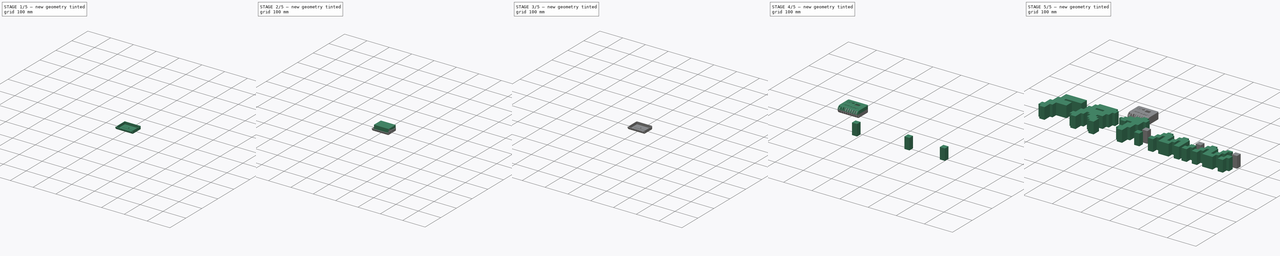
[diagram: build sequence overview — one tinted view per stage of 5, left to right]
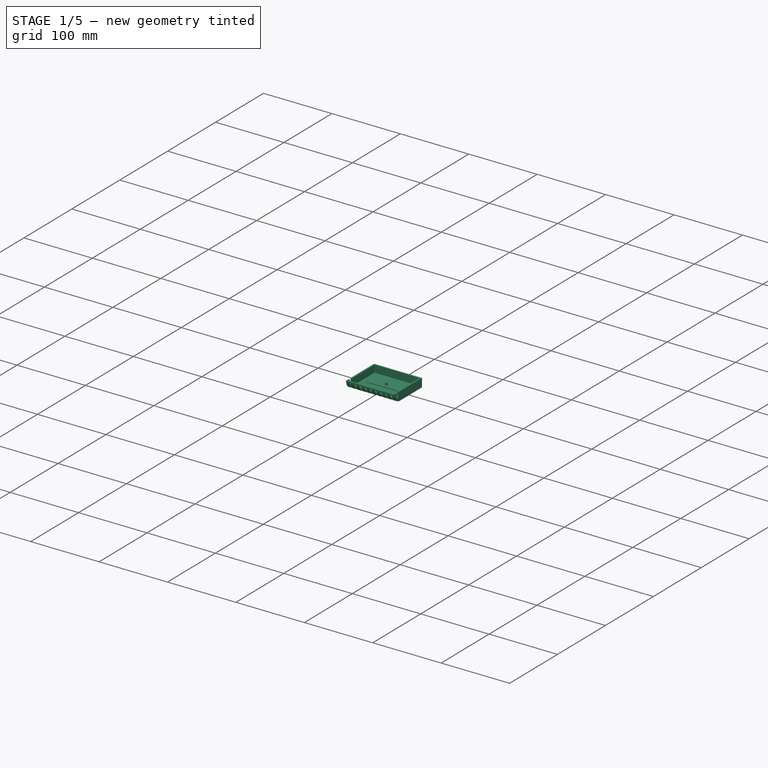
[diagram: stage 1 of 5 — iso view after this stage's code; geometry added in this stage tinted green]
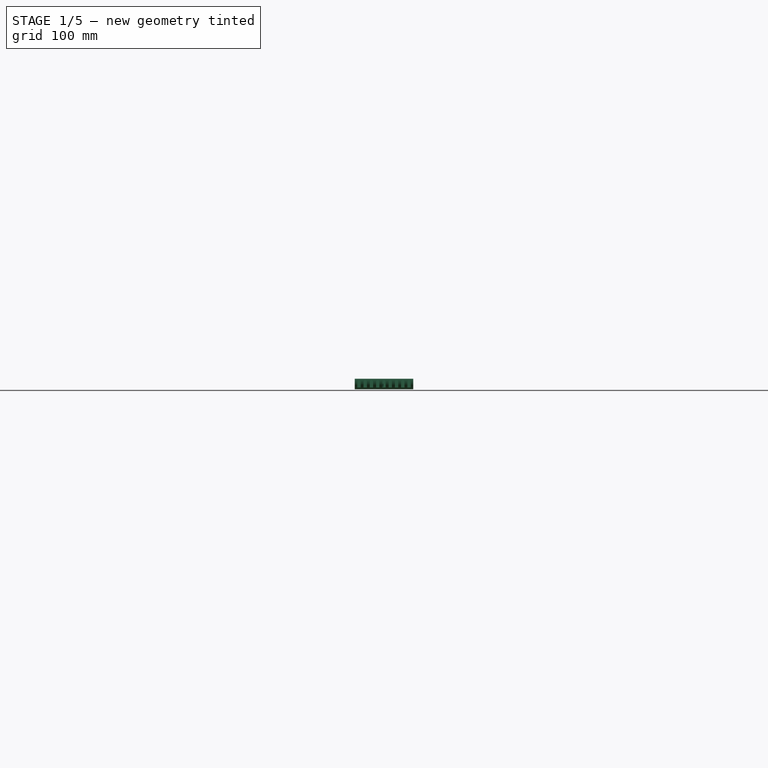
[diagram: stage 1 of 5 — front view after this stage's code; geometry added in this stage tinted green]
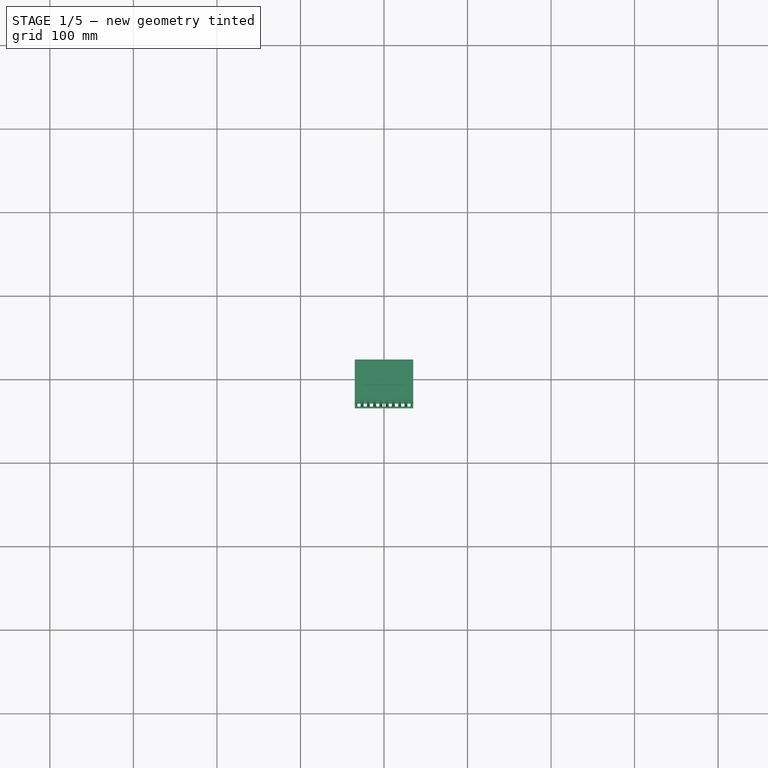
[diagram: stage 1 of 5 — top view after this stage's code; geometry added in this stage tinted green]
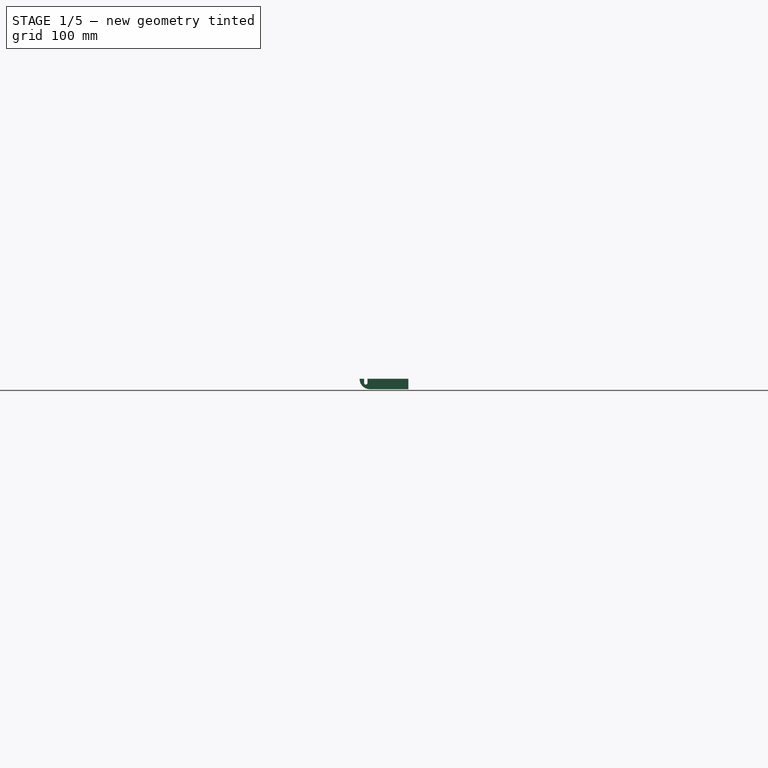
[diagram: stage 1 of 5 — right view after this stage's code; geometry added in this stage tinted green]
FCSTD DOCUMENT  (FreeCAD 1.0R38641 +678 (Git))
Label: case
License: All rights reserved
LicenseURL: https://en.wikipedia.org/wiki/All_rights_reserved
objects: Sketcher::SketchObject×27, PartDesign::Pocket×19, Part::Feature×12, Part::Extrusion×12, PartDesign::Pad×10, PartDesign::Fillet×5, PartDesign::Body×4, PartDesign::LinearPattern×2, PartDesign::Thickness×2, PartDesign::Mirrored×2, PartDesign::MultiTransform×2, PartDesign::Chamfer×2, Part::Cut×2, Part::MultiFuse×1, Part::Scale×1, App::Part×1
note: 212 computed .brp shape members not serialized (recipe doc carries the construction recipe); baked Part::Feature solids carry a one-line shape summary decoded from their .brp

FEATURE [PartDesign::LinearPattern] LinearPattern001
  Direction = -> X_Axis002
  Length = 30
  Mode = 0
  Occurrences = 5
  Offset = 7.5
  Refine = true
  Suppressed = false
  TransformMode = 0
FEATURE [Sketcher::SketchObject] Sketch006
  ArcFitTolerance = 1e-06
  AttachmentSupport = -> [XY_Plane002]
  FullyConstrained = true
  MakeInternals = false
  MapMode = 5
  sketch-geometry (5):
    g0: LineSegment StartX=-33 StartY=22 StartZ=0 EndX=-33 EndY=-22 EndZ=0
    g1: LineSegment StartX=-33 StartY=-22 StartZ=0 EndX=33 EndY=-22 EndZ=0
    g2: LineSegment StartX=33 StartY=-22 StartZ=0 EndX=33 EndY=22 EndZ=0
    g3: LineSegment StartX=33 StartY=22 StartZ=0 EndX=-33 EndY=22 EndZ=0
    g4: GeomPoint [constr] X=0 Y=0 Z=0
  constraints (12):
    c: Coincident(g0,g1)
    c: Coincident(g1,g2)
    c: Coincident(g2,g3)
    c: Coincident(g3,g0)
    c: Vertical(g0)
    c: Vertical(g2)
    c: Horizontal(g1)
    c: Horizontal(g3)
    c: Symmetric(g2,g0,g4)
    c: Coincident(g4,g-1)
    c: DistanceX(g1,g1) = 66
    c: DistanceY(g2,g2) = 44
FEATURE [PartDesign::Pad] Pad002
  Direction = (0,0,1)
  Length = 21
  Length2 = 10
  Profile = -> Sketch006
  ReferenceAxis = -> Sketch006 [N_Axis]
  Refine = true
  Suppressed = false
  Type = 0
FEATURE [Sketcher::SketchObject] Sketch007
  ArcFitTolerance = 1e-06
  AttachmentSupport = -> [Pad002]
  FullyConstrained = true
  MakeInternals = false
  MapMode = 5
  Placement = pos=(33,0,0) rot=(0.57735,0.57735,0.57735;2.0944rad)
  sketch-geometry (5):
    g0: LineSegment [constr] StartX=0 StartY=0 StartZ=0 EndX=0 EndY=10.5 EndZ=0
    g1: LineSegment [constr] StartX=0 StartY=10.5 StartZ=0 EndX=-22 EndY=10.5 EndZ=0
    g2: LineSegment [constr] StartX=-22 StartY=10.5 StartZ=0 EndX=-22 EndY=0 EndZ=0
    g3: LineSegment [constr] StartX=-22 StartY=0 StartZ=0 EndX=0 EndY=0 EndZ=0
    g4: Circle CenterX=-22 CenterY=10.5 CenterZ=0 NormalX=0 NormalY=0 NormalZ=1 AngleXU=0 Radius=10.5
  constraints (13):
    c: Coincident(g0,g1)
    c: Coincident(g1,g2)
    c: Coincident(g2,g3)
    c: Coincident(g3,g0)
    c: Vertical(g0)
    c: Vertical(g2)
    c: Horizontal(g1)
    c: Horizontal(g3)
    c: Coincident(g0,g-1)
    c: DistanceY(g2,g2) = 10.5
    c: DistanceX(g1,g1) = 22
    c: Coincident(g4,g1)
    c: PointOnObject(g2,g4)
FEATURE [PartDesign::Pad] Pad003
  BaseFeature = -> Pad002
  Direction = (1,0,0)
  Length = 66
  Length2 = 10
  Profile = -> Sketch007
  ReferenceAxis = -> Sketch007 [N_Axis]
  Refine = true
  Reversed = true
  Suppressed = false
  Type = 0
FEATURE [Sketcher::SketchObject] Sketch008
  ArcFitTolerance = 1e-06
  AttachmentSupport = -> [Pad003]
  FullyConstrained = true
  MakeInternals = false
  MapMode = 5
  Placement = pos=(0,0,21) rot=(0,0,1;0rad)
  sketch-geometry (5):
    g0: LineSegment StartX=-40 StartY=40 StartZ=0 EndX=-40 EndY=-40 EndZ=0
    g1: LineSegment StartX=-40 StartY=-40 StartZ=0 EndX=40 EndY=-40 EndZ=0
    g2: LineSegment StartX=40 StartY=-40 StartZ=0 EndX=40 EndY=40 EndZ=0
    g3: LineSegment StartX=40 StartY=40 StartZ=0 EndX=-40 EndY=40 EndZ=0
    g4: GeomPoint [constr] X=0 Y=0 Z=0
  constraints (12):
    c: Coincident(g0,g1)
    c: Coincident(g1,g2)
    c: Coincident(g2,g3)
    c: Coincident(g3,g0)
    c: Vertical(g0)
    c: Vertical(g2)
    c: Horizontal(g1)
    c: Horizontal(g3)
    c: Symmetric(g2,g0,g4)
    c: Coincident(g4,g-1)
    c: Equal(g3,g0)
    c: DistanceX(g3,g3) = 80
FEATURE [PartDesign::Pocket] Pocket004
  BaseFeature = -> Pad003
  Direction = (0,0,-1)
  Length = 10.5
  Length2 = 5
  Profile = -> Sketch008
  ReferenceAxis = -> Sketch008 [N_Axis]
  Refine = true
  Suppressed = false
  Type = 0
FEATURE [PartDesign::Thickness] Thickness001
  Base = -> Pocket004 [Face6]
  BaseFeature = -> Pocket004
  Intersection = false
  Join = 1
  Mode = 0
  Refine = true
  SupportTransform = false
  Suppressed = false
  Value = 2
FEATURE [Sketcher::SketchObject] Sketch009
  ArcFitTolerance = 1e-06
  AttachmentOffset = pos=(0,0,44) rot=(0,0,1;0rad)
  AttachmentSupport = -> [Thickness001]
  FullyConstrained = true
  MakeInternals = false
  MapMode = 5
  Placement = pos=(0,-22,9.8e-15) rot=(1,0,0;1.5708rad)
  sketch-geometry (13):
    g0: LineSegment [constr] StartX=-2 StartY=-7 StartZ=0 EndX=2 EndY=-7 EndZ=0
    g1: LineSegment [constr] StartX=2 StartY=-7 StartZ=0 EndX=2 EndY=7 EndZ=0
    g2: LineSegment [constr] StartX=2 StartY=7 StartZ=0 EndX=-2 EndY=7 EndZ=0
    g3: LineSegment [constr] StartX=-2 StartY=7 StartZ=0 EndX=-2 EndY=-7 EndZ=0
    g4: GeomPoint [constr] X=0 Y=0 Z=0
    g5: LineSegment [constr] StartX=-2 StartY=7 StartZ=0 EndX=-2 EndY=0 EndZ=0
    g6: LineSegment [constr] StartX=-2 StartY=0 StartZ=0 EndX=2 EndY=0 EndZ=0
    g7: LineSegment [constr] StartX=2 StartY=0 StartZ=0 EndX=2 EndY=7 EndZ=0
    g8: LineSegment [constr] StartX=2 StartY=7 StartZ=0 EndX=-2 EndY=7 EndZ=0
    g9: LineSegment StartX=-2 StartY=7 StartZ=0 EndX=-2 EndY=0 EndZ=0
    g10: LineSegment StartX=-2 StartY=0 StartZ=0 EndX=2 EndY=0 EndZ=0
    g11: LineSegment StartX=2 StartY=0 StartZ=0 EndX=2 EndY=7 EndZ=0
    g12: LineSegment StartX=2 StartY=7 StartZ=0 EndX=-2 EndY=7 EndZ=0
  constraints (32):
    c: Coincident(g0,g1)
    c: Coincident(g1,g2)
    c: Coincident(g2,g3)
    c: Coincident(g3,g0)
    c: Horizontal(g0)
    c: Horizontal(g2)
    c: Vertical(g1)
    c: Vertical(g3)
    c: Symmetric(g2,g0,g4)
    c: Coincident(g4,g-1)
    c: DistanceX(g2,g2) = 4
    c: DistanceY(g1,g1) = 14
    c: Coincident(g5,g6)
    c: Coincident(g6,g7)
    c: Coincident(g7,g8)
    c: Coincident(g8,g5)
    c: Vertical(g5)
    c: Vertical(g7)
    c: Horizontal(g6)
    c: Horizontal(g8)
    c: Coincident(g5,g2)
    c: Symmetric(g1,g1,g6)
    c: Coincident(g9,g10)
    c: Coincident(g10,g11)
    c: Coincident(g11,g12)
    c: Coincident(g12,g9)
    c: Vertical(g9)
    c: Vertical(g11)
    c: Horizontal(g10)
    c: Horizontal(g12)
    c: Coincident(g9,g2)
    c: Coincident(g10,g6)
FEATURE [PartDesign::Mirrored] Mirrored001
  MirrorPlane = -> Sketch009 [V_Axis]
  Refine = true
  Suppressed = false
  TransformMode = 0
FEATURE [PartDesign::Pocket] Pocket005
  BaseFeature = -> Thickness001
  Direction = (0,1,-2e-16)
  Length = 40
  Length2 = 5
  Profile = -> Sketch009
  ReferenceAxis = -> Sketch009 [N_Axis]
  Refine = true
  Reversed = true
  Suppressed = false
  Type = 0
FEATURE [Sketcher::SketchObject] Sketch010
  ArcFitTolerance = 1e-06
  AttachmentOffset = pos=(0,0,44) rot=(0,0,1;0rad)
  AttachmentSupport = -> [Thickness001]
  FullyConstrained = true
  MakeInternals = false
  MapMode = 5
  Placement = pos=(0,-22,9.8e-15) rot=(1,0,0;1.5708rad)
  sketch-geometry (11):
    g0: LineSegment [constr] StartX=-2 StartY=-7 StartZ=0 EndX=2 EndY=-7 EndZ=0
    g1: LineSegment [constr] StartX=2 StartY=-7 StartZ=0 EndX=2 EndY=7 EndZ=0
    g2: LineSegment [constr] StartX=2 StartY=7 StartZ=0 EndX=-2 EndY=7 EndZ=0
    g3: LineSegment [constr] StartX=-2 StartY=7 StartZ=0 EndX=-2 EndY=-7 EndZ=0
    g4: GeomPoint [constr] X=0 Y=0 Z=0
    g5: LineSegment [constr] StartX=-2 StartY=7 StartZ=0 EndX=-2 EndY=0 EndZ=0
    g6: LineSegment [constr] StartX=-2 StartY=0 StartZ=0 EndX=2 EndY=0 EndZ=0
    g7: LineSegment [constr] StartX=2 StartY=0 StartZ=0 EndX=2 EndY=7 EndZ=0
    g8: LineSegment [constr] StartX=2 StartY=7 StartZ=0 EndX=-2 EndY=7 EndZ=0
    g9: LineSegment [constr] StartX=-2 StartY=7 StartZ=0 EndX=0 EndY=7 EndZ=0
    g10: Circle CenterX=0 CenterY=7 CenterZ=0 NormalX=0 NormalY=0 NormalZ=1 AngleXU=0 Radius=2
  constraints (26):
    c: Coincident(g0,g1)
    c: Coincident(g1,g2)
    c: Coincident(g2,g3)
    c: Coincident(g3,g0)
    c: Horizontal(g0)
    c: Horizontal(g2)
    c: Vertical(g1)
    c: Vertical(g3)
    c: Symmetric(g2,g0,g4)
    c: Coincident(g4,g-1)
    c: DistanceX(g2,g2) = 4
    c: DistanceY(g1,g1) = 14
    c: Coincident(g5,g6)
    c: Coincident(g6,g7)
    c: Coincident(g7,g8)
    c: Coincident(g8,g5)
    c: Vertical(g5)
    c: Vertical(g7)
    c: Horizontal(g6)
    c: Horizontal(g8)
    c: Coincident(g5,g2)
    c: Symmetric(g1,g1,g6)
    c: Coincident(g9,g2)
    c: Symmetric(g2,g2,g9)
    c: Coincident(g10,g9)
    c: Diameter(g10) = 4
FEATURE [PartDesign::Pocket] Pocket006
  BaseFeature = -> Pocket005
  Direction = (0,1,-2e-16)
  Length = 40
  Length2 = 5
  Profile = -> Sketch010
  ReferenceAxis = -> Sketch010 [N_Axis]
  Refine = true
  Reversed = true
  Suppressed = false
  Type = 0
FEATURE [PartDesign::MultiTransform] MultiTransform001
  BaseFeature = -> Pocket006
  Originals = -> [Pocket005,Pocket006]
  Refine = true
  Suppressed = false
  TransformMode = 0
  Transformations = -> [LinearPattern001,Mirrored001]
FEATURE [Sketcher::SketchObject] Sketch011
  ArcFitTolerance = 1e-06
  AttachmentSupport = -> [MultiTransform001]
  FullyConstrained = true
  MakeInternals = false
  MapMode = 5
  Placement = pos=(35,0,0) rot=(0.57735,0.57735,0.57735;2.0944rad)
  sketch-geometry (8):
    g0: LineSegment [constr] StartX=0 StartY=0 StartZ=0 EndX=0 EndY=10.5 EndZ=0
    g1: LineSegment [constr] StartX=0 StartY=10.5 StartZ=0 EndX=-27 EndY=10.5 EndZ=0
    g2: LineSegment [constr] StartX=-27 StartY=10.5 StartZ=0 EndX=-27 EndY=0 EndZ=0
    g3: LineSegment [constr] StartX=-27 StartY=0 StartZ=0 EndX=0 EndY=0 EndZ=0
    g4: ArcOfCircle CenterX=-27 CenterY=10.5 CenterZ=0 NormalX=0 NormalY=0 NormalZ=1 AngleXU=0 Radius=2 StartAngle=7.7969e-12 EndAngle=3.14159
    g5: ArcOfCircle CenterX=-27 CenterY=5.5 CenterZ=0 NormalX=0 NormalY=0 NormalZ=1 AngleXU=0 Radius=2 StartAngle=3.14159 EndAngle=6.28319
    g6: LineSegment StartX=-25 StartY=10.5 StartZ=0 EndX=-25 EndY=5.5 EndZ=0
    g7: LineSegment StartX=-29 StartY=10.5 StartZ=0 EndX=-29 EndY=5.5 EndZ=0
  constraints (20):
    c: Coincident(g0,g1)
    c: Coincident(g1,g2)
    c: Coincident(g2,g3)
    c: Coincident(g3,g0)
    c: Vertical(g0)
    c: Vertical(g2)
    c: Horizontal(g1)
    c: Horizontal(g3)
    c: Coincident(g0,g-1)
    c: DistanceY(g0,g0) = 10.5
    c: DistanceX(g1,g1) = 27
    c: Tangent(g4,g6) = 1.5708
    c: Tangent(g4,g7) = -1.5708
    c: Tangent(g5,g6) = 1.5708
    c: Tangent(g5,g7) = -1.5708
    c: Equal(g4,g5)
    c: Coincident(g4,g1)
    c: Vertical(g6)
    c: Radius(g4) = 2
    c: DistanceY(g6,g6) = 5
FEATURE [PartDesign::Pocket] Pocket007
  BaseFeature = -> MultiTransform001
  Direction = (-1,0,0)
  Length = 100
  Length2 = 5
  Profile = -> Sketch011
  ReferenceAxis = -> Sketch011 [N_Axis]
  Refine = true
  Suppressed = false
  Type = 0
FEATURE [Sketcher::SketchObject] Sketch034
  ArcFitTolerance = 1e-06
  AttachmentSupport = -> [XY_Plane]
  FullyConstrained = true
  MakeInternals = false
  MapMode = 5
  sketch-geometry (5):
    g0: LineSegment StartX=-25 StartY=6 StartZ=0 EndX=-25 EndY=-6 EndZ=0
    g1: LineSegment StartX=-25 StartY=-6 StartZ=0 EndX=25 EndY=-6 EndZ=0
    g2: LineSegment StartX=25 StartY=-6 StartZ=0 EndX=25 EndY=6 EndZ=0
    g3: LineSegment StartX=25 StartY=6 StartZ=0 EndX=-25 EndY=6 EndZ=0
    g4: GeomPoint [constr] X=0 Y=0 Z=0
  constraints (12):
    c: Coincident(g0,g1)
    c: Coincident(g1,g2)
    c: Coincident(g2,g3)
    c: Coincident(g3,g0)
    c: Vertical(g0)
    c: Vertical(g2)
    c: Horizontal(g1)
    c: Horizontal(g3)
    c: Symmetric(g2,g0,g4)
    c: Coincident(g4,g-1)
    c: DistanceX(g1,g1) = 50
    c: DistanceY(g2,g2) = 12
FEATURE [PartDesign::Pad] Pad
  Direction = (0,0,1)
  Length = 1
  Length2 = 10
  Profile = -> Sketch034
  ReferenceAxis = -> Sketch034 [N_Axis]
  Refine = true
  Suppressed = false
  Type = 0
FEATURE [PartDesign::Body] Body  label="screen"
  AllowCompound = false
  Group = -> [Sketch034,Pad]
  Origin = -> Origin
  Placement = pos=(-0.5,-15.6,20) rot=(0,0,1;0rad)
  Tip = -> Pad
FEATURE [Sketcher::SketchObject] Sketch035
  ArcFitTolerance = 1e-06
  AttachmentSupport = -> [XY_Plane004]
  FullyConstrained = true
  MakeInternals = false
  MapMode = 5
  sketch-geometry (1):
    g0: Circle CenterX=0 CenterY=0 CenterZ=0 NormalX=0 NormalY=0 NormalZ=1 AngleXU=0 Radius=5
  constraints (2):
    c: Coincident(g0,g-1)
    c: Diameter(g0) = 10
FEATURE [PartDesign::Pad] Pad010
  Direction = (0,0,1)
  Length = 1
  Length2 = 10
  Profile = -> Sketch035
  ReferenceAxis = -> Sketch035 [N_Axis]
  Refine = true
  Suppressed = false
  Type = 0
FEATURE [Sketcher::SketchObject] Sketch036
  ArcFitTolerance = 1e-06
  AttachmentSupport = -> [Pad010]
  FullyConstrained = true
  MakeInternals = false
  MapMode = 5
  Placement = pos=(0,0,1) rot=(0,0,1;0rad)
  sketch-geometry (1):
    g0: Circle CenterX=0 CenterY=0 CenterZ=0 NormalX=0 NormalY=0 NormalZ=1 AngleXU=0 Radius=1.85
  constraints (2):
    c: Coincident(g0,g-1)
    c: Diameter(g0) = 3.7
FEATURE [PartDesign::Pad] Pad011
  BaseFeature = -> Pad010
  Direction = (0,0,1)
  Length = 3.5
  Length2 = 10
  Profile = -> Sketch036
  ReferenceAxis = -> Sketch036 [N_Axis]
  Refine = true
  Suppressed = false
  Type = 0
FEATURE [PartDesign::Body] Body003  label="button"
  AllowCompound = false
  Group = -> [Sketch035,Pad010,Sketch036,Pad011]
  Origin = -> Origin004
  Placement = pos=(-20.4,8,23.1) rot=(0,1,0;3.14159rad)
  Tip = -> Pad011
FEATURE [App::Part] Part
  Group = -> [Body001,path004,path012,path008,path011,path009,path003,path1,path002,path007,path006,Extrude010,path010,path005,Extrude004,Extrude011,Extrude,Fusion,Scale,Extrude002,Cut,Extrude009,Extrude008,Extrude007,Extrude001,Extrude006,Extrude005,Extrude003,Cut001,Body002,Body,Body003]
  Origin = -> Origin001
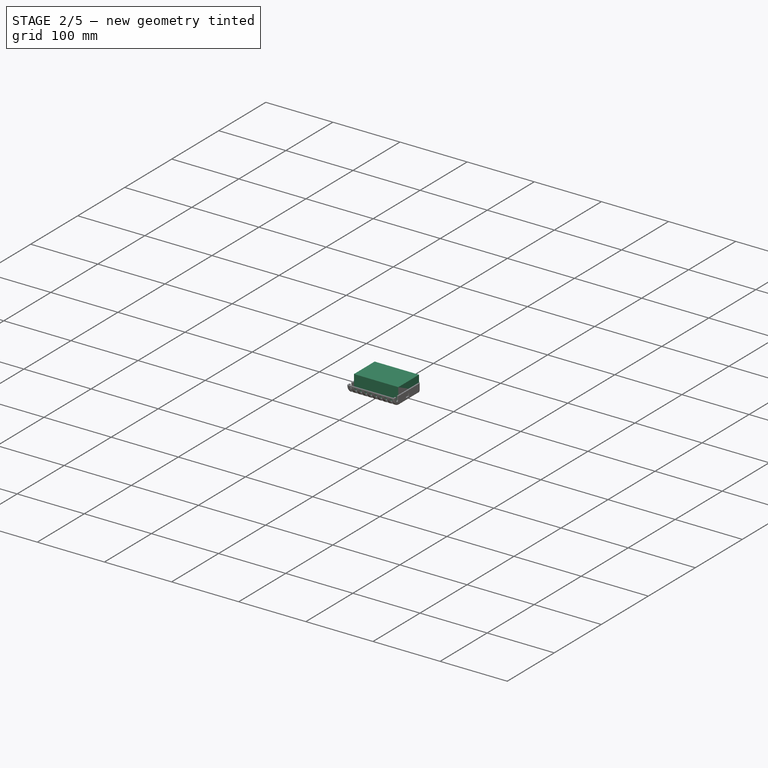
[diagram: stage 2 of 5 — iso view after this stage's code; geometry added in this stage tinted green]
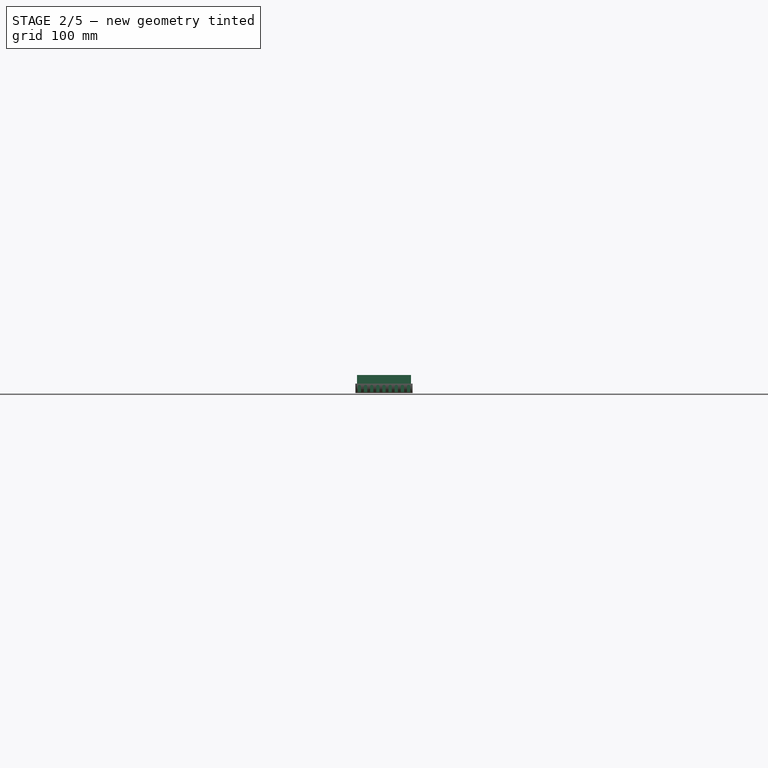
[diagram: stage 2 of 5 — front view after this stage's code; geometry added in this stage tinted green]
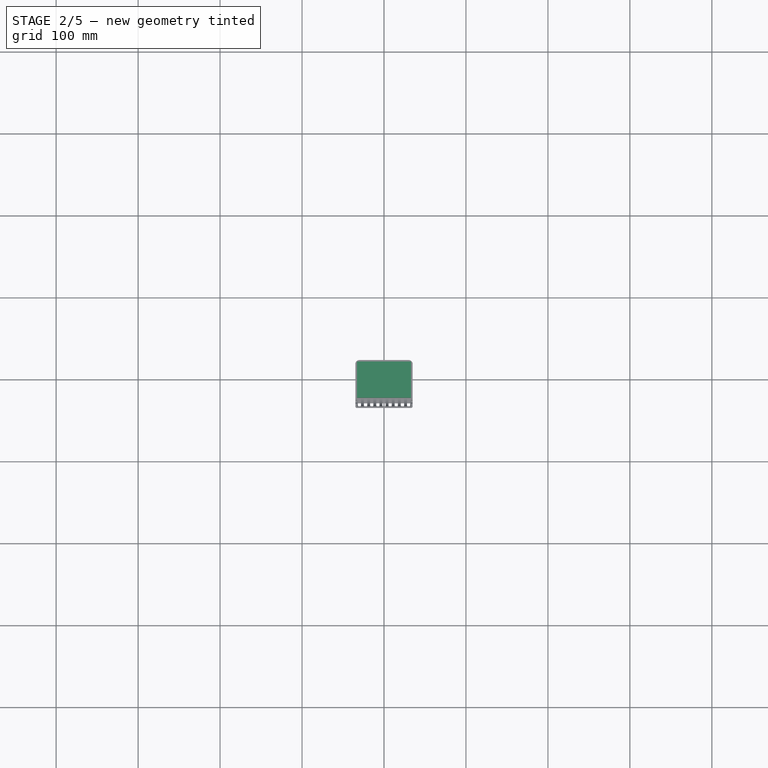
[diagram: stage 2 of 5 — top view after this stage's code; geometry added in this stage tinted green]
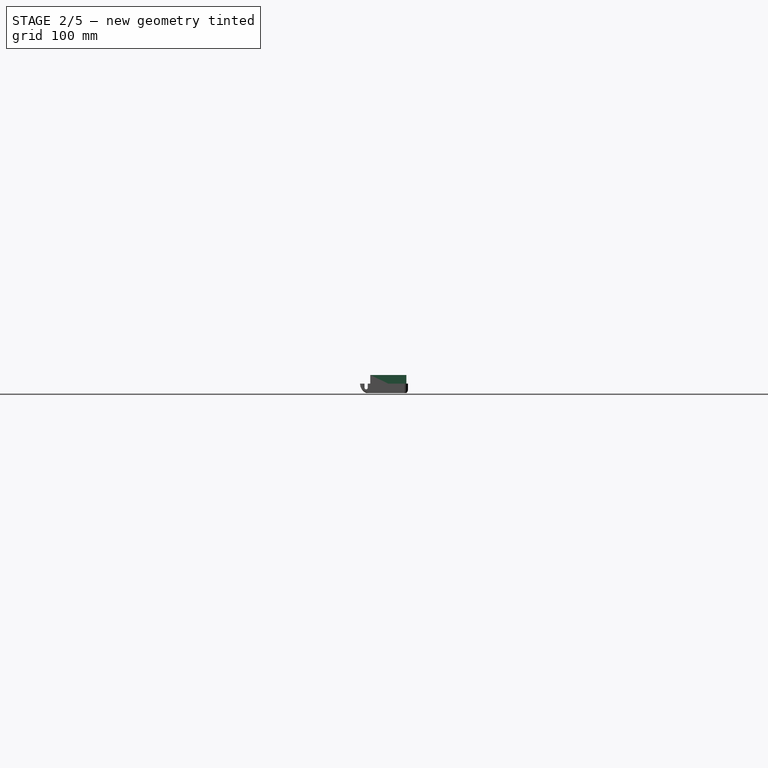
[diagram: stage 2 of 5 — right view after this stage's code; geometry added in this stage tinted green]
FEATURE [PartDesign::Fillet] Fillet002
  Base = -> Pocket007 [Edge105,Edge100]
  BaseFeature = -> Pocket007
  Radius = 2
  Refine = true
  SupportTransform = false
  Suppressed = false
  UseAllEdges = false
FEATURE [PartDesign::Fillet] Fillet003
  Base = -> Fillet002 [Edge11,Edge106]
  BaseFeature = -> Fillet002
  Radius = 5
  Refine = true
  SupportTransform = false
  Suppressed = false
  UseAllEdges = false
FEATURE [Sketcher::SketchObject] Sketch016
  ArcFitTolerance = 1e-06
  AttachmentSupport = -> [Fillet003]
  FullyConstrained = true
  MakeInternals = false
  MapMode = 5
  Placement = pos=(0,0,-2) rot=(1,0,0;3.14159rad)
  sketch-geometry (5):
    g0: LineSegment StartX=-20 StartY=11 StartZ=0 EndX=-20 EndY=-11 EndZ=0
    g1: LineSegment StartX=-20 StartY=-11 StartZ=0 EndX=20 EndY=-11 EndZ=0
    g2: LineSegment StartX=20 StartY=-11 StartZ=0 EndX=20 EndY=11 EndZ=0
    g3: LineSegment StartX=20 StartY=11 StartZ=0 EndX=-20 EndY=11 EndZ=0
    g4: GeomPoint [constr] X=0 Y=0 Z=0
  constraints (12):
    c: Coincident(g0,g1)
    c: Coincident(g1,g2)
    c: Coincident(g2,g3)
    c: Coincident(g3,g0)
    c: Vertical(g0)
    c: Vertical(g2)
    c: Horizontal(g1)
    c: Horizontal(g3)
    c: Symmetric(g2,g0,g4)
    c: Coincident(g4,g-1)
    c: DistanceX(g3,g3) = 40
    c: DistanceY(g2,g2) = 22
FEATURE [PartDesign::Pocket] Pocket011
  BaseFeature = -> Fillet003
  Direction = (0,0,1)
  Length = 1
  Length2 = 5
  Profile = -> Sketch016
  ReferenceAxis = -> Sketch016 [N_Axis]
  Refine = true
  Suppressed = false
  Type = 0
FEATURE [PartDesign::Chamfer] Chamfer001
  Angle = 45
  Base = -> Pocket011 [Edge44,Edge43,Edge46,Edge45]
  BaseFeature = -> Pocket011
  ChamferType = 1
  FlipDirection = false
  Refine = true
  Size = 5
  Size2 = 0.99
  SupportTransform = false
  Suppressed = false
  UseAllEdges = false
FEATURE [Sketcher::SketchObject] Sketch017
  ArcFitTolerance = 1e-06
  AttachmentSupport = -> [Chamfer001]
  FullyConstrained = true
  MakeInternals = false
  MapMode = 5
  Placement = pos=(0,0,-1) rot=(1,0,0;3.14159rad)
  sketch-geometry (12):
    g0: LineSegment [constr] StartX=0 StartY=0 StartZ=0 EndX=0 EndY=15.5 EndZ=0
    g1: LineSegment [constr] StartX=0 StartY=15.5 StartZ=0 EndX=-26 EndY=15.5 EndZ=0
    g2: LineSegment [constr] StartX=-26 StartY=15.5 StartZ=0 EndX=-26 EndY=0 EndZ=0
    g3: LineSegment [constr] StartX=-26 StartY=0 StartZ=0 EndX=0 EndY=0 EndZ=0
    g4: LineSegment [constr] StartX=-26 StartY=15.5 StartZ=0 EndX=-26 EndY=1.5 EndZ=0
    g5: LineSegment [constr] StartX=-26 StartY=1.5 StartZ=0 EndX=-17.5 EndY=1.5 EndZ=0
    g6: LineSegment [constr] StartX=-17.5 StartY=1.5 StartZ=0 EndX=-17.5 EndY=15.5 EndZ=0
    g7: LineSegment [constr] StartX=-17.5 StartY=15.5 StartZ=0 EndX=-26 EndY=15.5 EndZ=0
    g8: LineSegment StartX=-17.5 StartY=1.5 StartZ=0 EndX=-17.5 EndY=-10.5 EndZ=0
    g9: LineSegment StartX=-17.5 StartY=-10.5 StartZ=0 EndX=-1.5 EndY=-10.5 EndZ=0
    g10: LineSegment StartX=-1.5 StartY=-10.5 StartZ=0 EndX=-1.5 EndY=1.5 EndZ=0
    g11: LineSegment StartX=-1.5 StartY=1.5 StartZ=0 EndX=-17.5 EndY=1.5 EndZ=0
  constraints (33):
    c: Coincident(g0,g1)
    c: Coincident(g1,g2)
    c: Coincident(g2,g3)
    c: Coincident(g3,g0)
    c: Vertical(g0)
    c: Vertical(g2)
    c: Horizontal(g1)
    c: Horizontal(g3)
    c: Coincident(g0,g-1)
    c: DistanceX(g1,g1) = 26
    c: DistanceY(g2,g2) = 15.5
    c: Coincident(g4,g5)
    c: Coincident(g5,g6)
    c: Coincident(g6,g7)
    c: Coincident(g7,g4)
    c: Vertical(g4)
    c: Vertical(g6)
    c: Horizontal(g5)
    c: Horizontal(g7)
    c: Coincident(g4,g1)
    c: DistanceX(g5,g5) = 8.5
    c: DistanceY(g6,g6) = 14
    c: Coincident(g8,g9)
    c: Coincident(g9,g10)
    c: Coincident(g10,g11)
    c: Coincident(g11,g8)
    c: Vertical(g8)
    c: Vertical(g10)
    c: Horizontal(g9)
    c: Horizontal(g11)
    c: Coincident(g8,g5)
    c: DistanceX(g11,g11) = 16
    c: DistanceY(g10,g10) = 12
FEATURE [PartDesign::Pocket] Pocket012
  BaseFeature = -> Chamfer001
  Direction = (0,0,1)
  Length = 5
  Length2 = 5
  Profile = -> Sketch017
  ReferenceAxis = -> Sketch017 [N_Axis]
  Refine = true
  Suppressed = false
  Type = 0
FEATURE [Sketcher::SketchObject] Sketch018
  ArcFitTolerance = 1e-06
  AttachmentSupport = -> [Chamfer001]
  FullyConstrained = true
  MakeInternals = false
  MapMode = 5
  Placement = pos=(0,0,-1) rot=(1,0,0;3.14159rad)
  sketch-geometry (17):
    g0: LineSegment [constr] StartX=0 StartY=0 StartZ=0 EndX=0 EndY=15.5 EndZ=0
    g1: LineSegment [constr] StartX=0 StartY=15.5 StartZ=0 EndX=-26 EndY=15.5 EndZ=0
    g2: LineSegment [constr] StartX=-26 StartY=15.5 StartZ=0 EndX=-26 EndY=0 EndZ=0
    g3: LineSegment [constr] StartX=-26 StartY=0 StartZ=0 EndX=0 EndY=0 EndZ=0
    g4: LineSegment [constr] StartX=-26 StartY=15.5 StartZ=0 EndX=-26 EndY=1.5 EndZ=0
    g5: LineSegment [constr] StartX=-26 StartY=1.5 StartZ=0 EndX=-17 EndY=1.5 EndZ=0
    g6: LineSegment [constr] StartX=-17 StartY=1.5 StartZ=0 EndX=-17 EndY=15.5 EndZ=0
    g7: LineSegment [constr] StartX=-17 StartY=15.5 StartZ=0 EndX=-26 EndY=15.5 EndZ=0
    g8: LineSegment [constr] StartX=-17 StartY=1.5 StartZ=0 EndX=-17 EndY=-10.5 EndZ=0
    g9: LineSegment [constr] StartX=-17 StartY=-10.5 StartZ=0 EndX=-1 EndY=-10.5 EndZ=0
    g10: LineSegment [constr] StartX=-1 StartY=-10.5 StartZ=0 EndX=-1 EndY=1.5 EndZ=0
    g11: LineSegment [constr] StartX=-1 StartY=1.5 StartZ=0 EndX=-17 EndY=1.5 EndZ=0
    g12: LineSegment [constr] StartX=-1 StartY=1.5 StartZ=0 EndX=-1 EndY=-8 EndZ=0
    g13: LineSegment [constr] StartX=-1 StartY=-8 StartZ=0 EndX=8 EndY=-8 EndZ=0
    g14: LineSegment [constr] StartX=8 StartY=-8 StartZ=0 EndX=8 EndY=1.5 EndZ=0
    g15: LineSegment [constr] StartX=8 StartY=1.5 StartZ=0 EndX=-1 EndY=1.5 EndZ=0
    g16: Circle CenterX=8 CenterY=-8 CenterZ=0 NormalX=0 NormalY=0 NormalZ=1 AngleXU=0 Radius=4.25
  constraints (46):
    c: Coincident(g0,g1)
    c: Coincident(g1,g2)
    c: Coincident(g2,g3)
    c: Coincident(g3,g0)
    c: Vertical(g0)
    c: Vertical(g2)
    c: Horizontal(g1)
    c: Horizontal(g3)
    c: Coincident(g0,g-1)
    c: DistanceX(g1,g1) = 26
    c: DistanceY(g2,g2) = 15.5
    c: Coincident(g4,g5)
    c: Coincident(g5,g6)
    c: Coincident(g6,g7)
    c: Coincident(g7,g4)
    c: Vertical(g4)
    c: Vertical(g6)
    c: Horizontal(g5)
    c: Horizontal(g7)
    c: Coincident(g4,g1)
    c: DistanceX(g5,g5) = 9
    c: DistanceY(g6,g6) = 14
    c: Coincident(g8,g9)
    c: Coincident(g9,g10)
    c: Coincident(g10,g11)
    c: Coincident(g11,g8)
    c: Vertical(g8)
    c: Vertical(g10)
    c: Horizontal(g9)
    c: Horizontal(g11)
    c: Coincident(g8,g5)
    c: DistanceX(g11,g11) = 16
    c: DistanceY(g10,g10) = 12
    c: Coincident(g12,g13)
    c: Coincident(g13,g14)
    c: Coincident(g14,g15)
    c: Coincident(g15,g12)
    c: Vertical(g12)
    c: Vertical(g14)
    c: Horizontal(g13)
    c: Horizontal(g15)
    c: Coincident(g12,g10)
    c: DistanceX(g15,g15) = 9
    c: DistanceY(g14,g14) = 9.5
    c: Coincident(g16,g13)
    c: Diameter(g16) = 8.5
FEATURE [PartDesign::Pocket] Pocket013
  BaseFeature = -> Pocket012
  Direction = (0,0,1)
  Length = 5
  Length2 = 5
  Profile = -> Sketch018
  ReferenceAxis = -> Sketch018 [N_Axis]
  Refine = true
  Suppressed = false
  Type = 0
FEATURE [Sketcher::SketchObject] Sketch019
  ArcFitTolerance = 1e-06
  AttachmentSupport = -> [Pocket013]
  FullyConstrained = true
  MakeInternals = false
  MapMode = 5
  Placement = pos=(35,0,0) rot=(0.57735,0.57735,0.57735;2.0944rad)
  sketch-geometry (8):
    g0: LineSegment [constr] StartX=0 StartY=0 StartZ=0 EndX=0 EndY=6 EndZ=0
    g1: LineSegment [constr] StartX=0 StartY=6 StartZ=0 EndX=-8.5 EndY=6 EndZ=0
    g2: LineSegment [constr] StartX=-8.5 StartY=6 StartZ=0 EndX=-8.5 EndY=0 EndZ=0
    g3: LineSegment [constr] StartX=-8.5 StartY=0 StartZ=0 EndX=0 EndY=0 EndZ=0
    g4: LineSegment StartX=-8.5 StartY=6 StartZ=0 EndX=-8.5 EndY=1.5 EndZ=0
    g5: LineSegment StartX=-8.5 StartY=1.5 StartZ=0 EndX=-1.5 EndY=1.5 EndZ=0
    g6: LineSegment StartX=-1.5 StartY=1.5 StartZ=0 EndX=-1.5 EndY=6 EndZ=0
    g7: LineSegment StartX=-1.5 StartY=6 StartZ=0 EndX=-8.5 EndY=6 EndZ=0
  constraints (22):
    c: Coincident(g0,g1)
    c: Coincident(g1,g2)
    c: Coincident(g2,g3)
    c: Coincident(g3,g0)
    c: Vertical(g0)
    c: Vertical(g2)
    c: Horizontal(g1)
    c: Horizontal(g3)
    c: Coincident(g0,g-1)
    c: DistanceX(g1,g1) = 8.5
    c: DistanceY(g2,g2) = 6
    c: Coincident(g4,g5)
    c: Coincident(g5,g6)
    c: Coincident(g6,g7)
    c: Coincident(g7,g4)
    c: Vertical(g4)
    c: Vertical(g6)
    c: Horizontal(g5)
    c: Horizontal(g7)
    c: Coincident(g4,g1)
    c: DistanceY(g6,g6) = 4.5
    c: DistanceX(g7,g7) = 7
FEATURE [PartDesign::Pocket] Pocket014
  BaseFeature = -> Pocket013
  Direction = (-1,0,0)
  Length = 5
  Length2 = 5
  Profile = -> Sketch019
  ReferenceAxis = -> Sketch019 [N_Axis]
  Refine = true
  Suppressed = false
  Type = 0
FEATURE [Sketcher::SketchObject] Sketch020
  ArcFitTolerance = 1e-06
  AttachmentSupport = -> [Chamfer001]
  FullyConstrained = true
  MakeInternals = false
  MapMode = 5
  Placement = pos=(0,0,-1) rot=(1,0,0;3.14159rad)
  sketch-geometry (37):
    g0: LineSegment [constr] StartX=0 StartY=0 StartZ=0 EndX=0 EndY=15.5 EndZ=0
    g1: LineSegment [constr] StartX=0 StartY=15.5 StartZ=0 EndX=-26 EndY=15.5 EndZ=0
    g2: LineSegment [constr] StartX=-26 StartY=15.5 StartZ=0 EndX=-26 EndY=0 EndZ=0
    g3: LineSegment [constr] StartX=-26 StartY=0 StartZ=0 EndX=0 EndY=0 EndZ=0
    g4: LineSegment [constr] StartX=-26 StartY=15.5 StartZ=0 EndX=-26 EndY=1.5 EndZ=0
    g5: LineSegment [constr] StartX=-26 StartY=1.5 StartZ=0 EndX=-17 EndY=1.5 EndZ=0
    g6: LineSegment [constr] StartX=-17 StartY=1.5 StartZ=0 EndX=-17 EndY=15.5 EndZ=0
    g7: LineSegment [constr] StartX=-17 StartY=15.5 StartZ=0 EndX=-26 EndY=15.5 EndZ=0
    g8: LineSegment [constr] StartX=-17 StartY=1.5 StartZ=0 EndX=-17 EndY=-10.5 EndZ=0
    g9: LineSegment [constr] StartX=-17 StartY=-10.5 StartZ=0 EndX=-1 EndY=-10.5 EndZ=0
    g10: LineSegment [constr] StartX=-1 StartY=-10.5 StartZ=0 EndX=-1 EndY=1.5 EndZ=0
    g11: LineSegment [constr] StartX=-1 StartY=1.5 StartZ=0 EndX=-17 EndY=1.5 EndZ=0
    g12: LineSegment [constr] StartX=-1 StartY=1.5 StartZ=0 EndX=-1 EndY=-8 EndZ=0
    g13: LineSegment [constr] StartX=-1 StartY=-8 StartZ=0 EndX=8 EndY=-8 EndZ=0
    g14: LineSegment [constr] StartX=8 StartY=-8 StartZ=0 EndX=8 EndY=1.5 EndZ=0
    g15: LineSegment [constr] StartX=8 StartY=1.5 StartZ=0 EndX=-1 EndY=1.5 EndZ=0
    g16: Circle [constr] CenterX=8 CenterY=-8 CenterZ=0 NormalX=0 NormalY=0 NormalZ=1 AngleXU=0 Radius=4.25
    g17: LineSegment [constr] StartX=8 StartY=-8 StartZ=0 EndX=20.5 EndY=-8 EndZ=0
    g18: Circle CenterX=20.5 CenterY=-8 CenterZ=0 NormalX=0 NormalY=0 NormalZ=1 AngleXU=0 Radius=2
    g19: LineSegment [constr] StartX=15.25 StartY=-5.5 StartZ=0 EndX=15.25 EndY=-10.5 EndZ=0
    g20: LineSegment [constr] StartX=15.25 StartY=-10.5 StartZ=0 EndX=25.75 EndY=-10.5 EndZ=0
    g21: LineSegment [constr] StartX=25.75 StartY=-10.5 StartZ=0 EndX=25.75 EndY=-5.5 EndZ=0
    g22: LineSegment [constr] StartX=25.75 StartY=-5.5 StartZ=0 EndX=15.25 EndY=-5.5 EndZ=0
    g23: GeomPoint [constr] X=20.5 Y=-8 Z=0
    g24: ArcOfCircle CenterX=20.5 CenterY=-8 CenterZ=0 NormalX=0 NormalY=0 NormalZ=1 AngleXU=0 Radius=5.81485 StartAngle=0.444419 EndAngle=5.83877
    g25: LineSegment [constr] StartX=15 StartY=-4.5 StartZ=0 EndX=15 EndY=-11.5 EndZ=0
    g26: LineSegment [constr] StartX=15 StartY=-11.5 StartZ=0 EndX=26 EndY=-11.5 EndZ=0
    g27: LineSegment [constr] StartX=26 StartY=-11.5 StartZ=0 EndX=26 EndY=-4.5 EndZ=0
    g28: LineSegment [constr] StartX=26 StartY=-4.5 StartZ=0 EndX=15 EndY=-4.5 EndZ=0
    g29: GeomPoint [constr] X=20.5 Y=-8 Z=0
    g30: ArcOfCircle CenterX=20.5 CenterY=-8 CenterZ=0 NormalX=0 NormalY=0 NormalZ=1 AngleXU=0 Radius=6.5192 StartAngle=0.566729 EndAngle=5.71646
    g31: LineSegment StartX=26 StartY=-4.5 StartZ=0 EndX=32 EndY=-4.5 EndZ=0
    g32: LineSegment StartX=25.75 StartY=-5.5 StartZ=0 EndX=32 EndY=-5.5 EndZ=0
    g33: LineSegment StartX=25.75 StartY=-10.5 StartZ=0 EndX=32 EndY=-10.5 EndZ=0
    g34: LineSegment StartX=26 StartY=-11.5 StartZ=0 EndX=32 EndY=-11.5 EndZ=0
    g35: LineSegment StartX=32 StartY=-10.5 StartZ=0 EndX=32 EndY=-11.5 EndZ=0
    g36: LineSegment StartX=32 StartY=-4.5 StartZ=0 EndX=32 EndY=-5.5 EndZ=0
  constraints (95):
    c: Coincident(g0,g1)
    c: Coincident(g1,g2)
    c: Coincident(g2,g3)
    c: Coincident(g3,g0)
    c: Vertical(g0)
    c: Vertical(g2)
    c: Horizontal(g1)
    c: Horizontal(g3)
    c: Coincident(g0,g-1)
    c: DistanceX(g1,g1) = 26
    c: DistanceY(g2,g2) = 15.5
    c: Coincident(g4,g5)
    c: Coincident(g5,g6)
    c: Coincident(g6,g7)
    c: Coincident(g7,g4)
    c: Vertical(g4)
    c: Vertical(g6)
    c: Horizontal(g5)
    c: Horizontal(g7)
    c: Coincident(g4,g1)
    c: DistanceX(g5,g5) = 9
    c: DistanceY(g6,g6) = 14
    c: Coincident(g8,g9)
    c: Coincident(g9,g10)
    c: Coincident(g10,g11)
    c: Coincident(g11,g8)
    c: Vertical(g8)
    c: Vertical(g10)
    c: Horizontal(g9)
    c: Horizontal(g11)
    c: Coincident(g8,g5)
    c: DistanceX(g11,g11) = 16
    c: DistanceY(g10,g10) = 12
    c: Coincident(g12,g13)
    c: Coincident(g13,g14)
    c: Coincident(g14,g15)
    c: Coincident(g15,g12)
    c: Vertical(g12)
    c: Vertical(g14)
    c: Horizontal(g13)
    c: Horizontal(g15)
    c: Coincident(g12,g10)
    c: DistanceX(g15,g15) = 9
    c: DistanceY(g14,g14) = 9.5
    c: Coincident(g16,g13)
    c: Diameter(g16) = 8.5
    c: Coincident(g17,g13)
    c: Horizontal(g17)
    c: DistanceX(g17,g17) = 12.5
    c: Coincident(g18,g17)
    c: Diameter(g18) = 4
    c: Coincident(g19,g20)
    c: Coincident(g20,g21)
    c: Coincident(g21,g22)
    c: Coincident(g22,g19)
    c: Vertical(g19)
    c: Vertical(g21)
    c: Horizontal(g20)
    c: Symmetric(g21,g19,g23)
    c: Coincident(g23,g17)
    c: DistanceY(g21,g21) = 5
    c: Coincident(g24,g17)
    c: Coincident(g24,g21)
    c: Coincident(g24,g20)
    c: DistanceX(g20,g20) = 10.5
    c: Coincident(g25,g26)
    c: Coincident(g26,g27)
    c: Coincident(g27,g28)
    c: Coincident(g28,g25)
    c: Vertical(g25)
    c: Vertical(g27)
    c: Horizontal(g26)
    c: Symmetric(g27,g25,g29)
    c: Coincident(g29,g17)
    c: DistanceY(g27,g27) = 7
    c: DistanceX(g28,g28) = 11
    c: Coincident(g26,g30)
    c: Coincident(g27,g30)
    c: Coincident(g17,g30)
    c: Coincident(g31,g27)
    c: Horizontal(g31)
    c: Coincident(g32,g21)
    c: Horizontal(g32)
    c: Coincident(g33,g20)
    c: Horizontal(g33)
    c: Coincident(g34,g26)
    c: Horizontal(g34)
    c: Coincident(g35,g33)
    c: Coincident(g35,g34)
    c: Coincident(g36,g31)
    c: Coincident(g36,g32)
    c: Vertical(g36)
    c: Vertical(g35)
    c: Equal(g31,g34)
    c: DistanceX(g31,g31) = 6
FEATURE [PartDesign::Pocket] Pocket015
  BaseFeature = -> Pocket014
  Direction = (0,0,1)
  Length = 5
  Length2 = 5
  Midplane = true
  Profile = -> Sketch020
  ReferenceAxis = -> Sketch020 [N_Axis]
  Refine = true
  Suppressed = false
  Type = 0
FEATURE [Part::Scale] Scale
  Base = -> Cut
  Placement = pos=(4.7,-24.8,20.3) rot=(0,0,1;3.14159rad)
  Uniform = true
  UniformScale = 0.07
  XScale = 1
  YScale = 1
  ZScale = 1
FEATURE [Sketcher::SketchObject] Sketch022
  ArcFitTolerance = 1e-06
  AttachmentSupport = -> [Pocket015]
  FullyConstrained = true
  MakeInternals = false
  MapMode = 5
  Placement = pos=(0,0,-2) rot=(1,0,0;3.14159rad)
  sketch-geometry (10):
    g0: LineSegment [constr] StartX=0 StartY=0 StartZ=0 EndX=0 EndY=16 EndZ=0
    g1: LineSegment [constr] StartX=0 StartY=16 StartZ=0 EndX=-27 EndY=16 EndZ=0
    g2: LineSegment [constr] StartX=-27 StartY=16 StartZ=0 EndX=-27 EndY=0 EndZ=0
    g3: LineSegment [constr] StartX=-27 StartY=0 StartZ=0 EndX=0 EndY=0 EndZ=0
    g4: LineSegment [constr] StartX=0 StartY=0 StartZ=0 EndX=28 EndY=0 EndZ=0
    g5: LineSegment [constr] StartX=28 StartY=0 StartZ=0 EndX=28 EndY=16 EndZ=0
    g6: LineSegment [constr] StartX=28 StartY=16 StartZ=0 EndX=0 EndY=16 EndZ=0
    g7: LineSegment [constr] StartX=0 StartY=16 StartZ=0 EndX=0 EndY=0 EndZ=0
    g8: Circle CenterX=-27 CenterY=16 CenterZ=0 NormalX=0 NormalY=0 NormalZ=1 AngleXU=0 Radius=1.15
    g9: Circle CenterX=28 CenterY=16 CenterZ=0 NormalX=0 NormalY=0 NormalZ=1 AngleXU=0 Radius=1.15
  constraints (26):
    c: Coincident(g0,g1)
    c: Coincident(g1,g2)
    c: Coincident(g2,g3)
    c: Coincident(g3,g0)
    c: Vertical(g0)
    c: Vertical(g2)
    c: Horizontal(g1)
    c: Horizontal(g3)
    c: Coincident(g0,g-1)
    c: Coincident(g4,g5)
    c: Coincident(g5,g6)
    c: Coincident(g6,g7)
    c: Coincident(g7,g4)
    c: Horizontal(g4)
    c: Horizontal(g6)
    c: Vertical(g5)
    c: Vertical(g7)
    c: Coincident(g4,g0)
    c: Equal(g2,g5)
    c: DistanceY(g2,g2) = 16
    c: DistanceX(g1,g1) = 27
    c: Coincident(g8,g1)
    c: Coincident(g9,g5)
    c: Equal(g9,g8)
    c: Diameter(g8) = 2.3
    c: DistanceX(g6,g6) = 28
FEATURE [PartDesign::Pocket] Pocket017
  BaseFeature = -> Pocket015
  Direction = (0,0,1)
  Length = 5
  Length2 = 5
  Profile = -> Sketch022
  ReferenceAxis = -> Sketch022 [N_Axis]
  Refine = true
  Suppressed = false
  Type = 0
FEATURE [PartDesign::LinearPattern] LinearPattern002
  Direction = -> X_Axis003
  Length = 30
  Mode = 0
  Occurrences = 5
  Offset = 7.5
  Refine = true
  Suppressed = false
  TransformMode = 0
FEATURE [Sketcher::SketchObject] Sketch023
  ArcFitTolerance = 1e-06
  AttachmentSupport = -> [XY_Plane003]
  FullyConstrained = true
  MakeInternals = false
  MapMode = 5
  sketch-geometry (5):
    g0: LineSegment StartX=-33 StartY=22 StartZ=0 EndX=-33 EndY=-22 EndZ=0
    g1: LineSegment StartX=-33 StartY=-22 StartZ=0 EndX=33 EndY=-22 EndZ=0
    g2: LineSegment StartX=33 StartY=-22 StartZ=0 EndX=33 EndY=22 EndZ=0
    g3: LineSegment StartX=33 StartY=22 StartZ=0 EndX=-33 EndY=22 EndZ=0
    g4: GeomPoint [constr] X=0 Y=0 Z=0
  constraints (12):
    c: Coincident(g0,g1)
    c: Coincident(g1,g2)
    c: Coincident(g2,g3)
    c: Coincident(g3,g0)
    c: Vertical(g0)
    c: Vertical(g2)
    c: Horizontal(g1)
    c: Horizontal(g3)
    c: Symmetric(g2,g0,g4)
    c: Coincident(g4,g-1)
    c: DistanceX(g1,g1) = 66
    c: DistanceY(g2,g2) = 44
FEATURE [PartDesign::Pad] Pad005
  Direction = (0,0,1)
  Length = 21
  Length2 = 10
  Profile = -> Sketch023
  ReferenceAxis = -> Sketch023 [N_Axis]
  Refine = true
  Suppressed = false
  Type = 0
FEATURE [PartDesign::Body] Body002  label="bot"
  AllowCompound = false
  Group = -> [Sketch023,Pad005,Sketch024,Pad006,Sketch025,Pocket018,Thickness002,Sketch026,Pocket019,Sketch027,Pocket020,MultiTransform002,LinearPattern002,Mirrored002,Sketch028,Pocket021,Fillet006,Fillet007,Sketch029,Pocket022,Sketch030,Pocket023,Sketch031,Pad007,Sketch032,Pocket024,Sketch033,Pocket025,Pad008,Pad009,Fillet008,Chamfer002]
  Origin = -> Origin003
  Tip = -> Chamfer002
FEATURE [Sketcher::SketchObject] Sketch
  ArcFitTolerance = 1e-06
  AttachmentSupport = -> [Pocket017]
  FullyConstrained = true
  MakeInternals = false
  MapMode = 5
  Placement = pos=(0,0,-2) rot=(1,0,0;3.14159rad)
  sketch-geometry (5):
    g0: LineSegment StartX=-45 StartY=40 StartZ=0 EndX=-45 EndY=-40 EndZ=0
    g1: LineSegment StartX=-45 StartY=-40 StartZ=0 EndX=45 EndY=-40 EndZ=0
    g2: LineSegment StartX=45 StartY=-40 StartZ=0 EndX=45 EndY=40 EndZ=0
    g3: LineSegment StartX=45 StartY=40 StartZ=0 EndX=-45 EndY=40 EndZ=0
    g4: GeomPoint [constr] X=0 Y=0 Z=0
  constraints (12):
    c: Coincident(g0,g1)
    c: Coincident(g1,g2)
    c: Coincident(g2,g3)
    c: Coincident(g3,g0)
    c: Vertical(g0)
    c: Vertical(g2)
    c: Horizontal(g1)
    c: Horizontal(g3)
    c: Symmetric(g2,g0,g4)
    c: Coincident(g4,g-1)
    c: DistanceX(g3,g3) = 90
    c: DistanceY(g2,g2) = 80
FEATURE [PartDesign::Pocket] Pocket
  BaseFeature = -> Pocket017
  Direction = (0,0,1)
  Length = 1
  Length2 = 5
  Profile = -> Sketch
  ReferenceAxis = -> Sketch [N_Axis]
  Refine = true
  Suppressed = false
  Type = 0
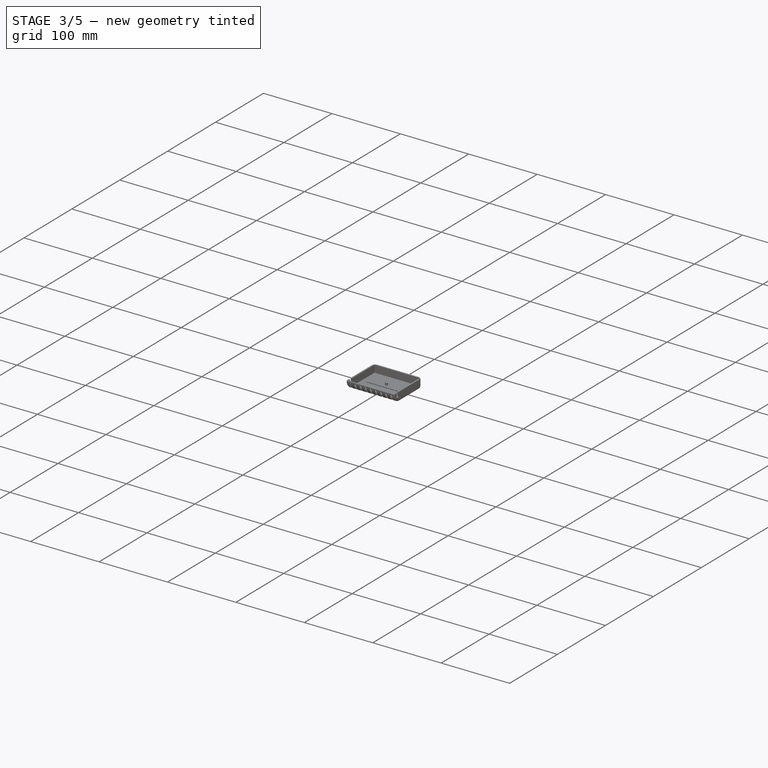
[diagram: stage 3 of 5 — iso view after this stage's code; geometry added in this stage tinted green]
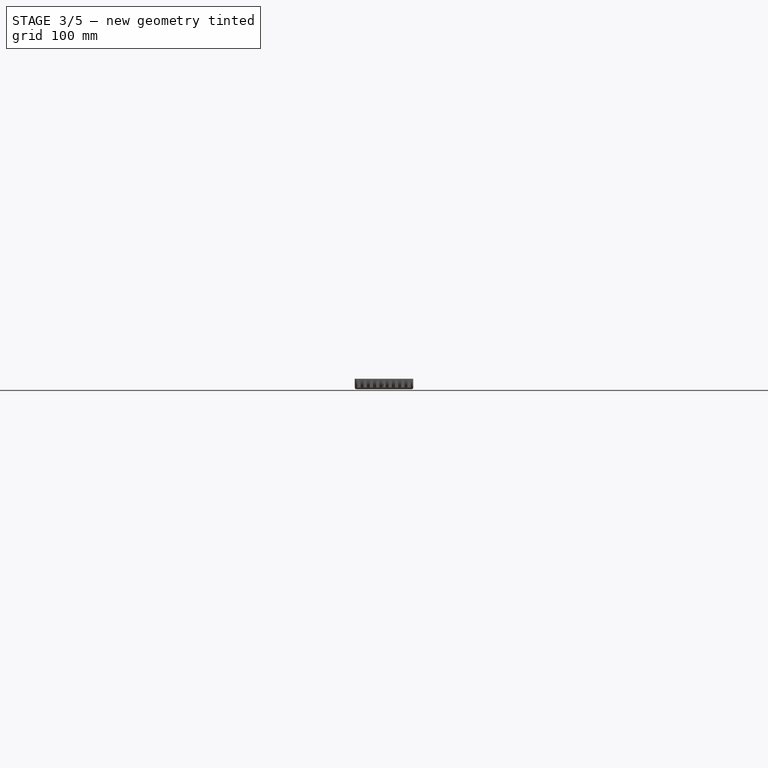
[diagram: stage 3 of 5 — front view after this stage's code; geometry added in this stage tinted green]
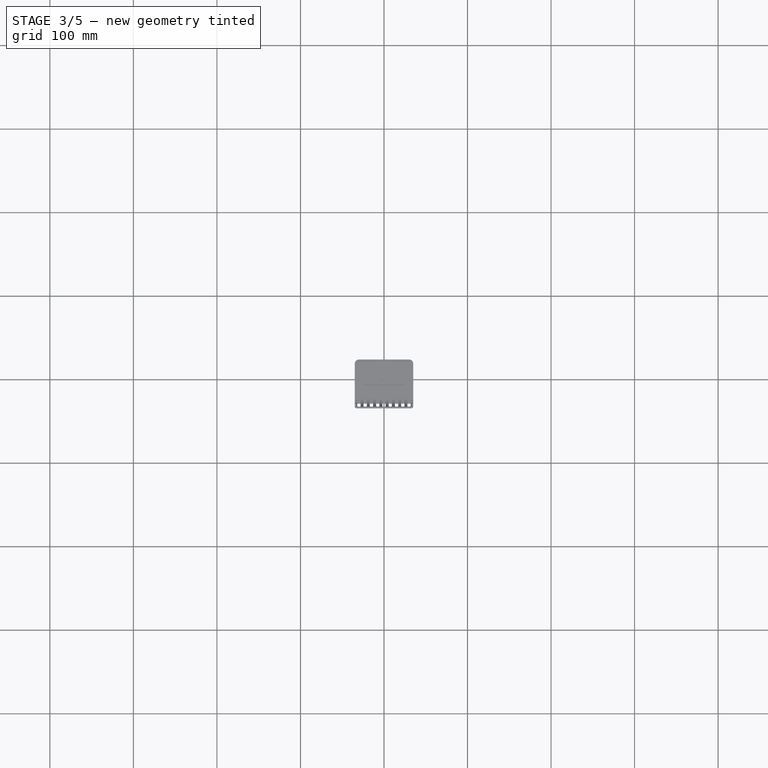
[diagram: stage 3 of 5 — top view after this stage's code; geometry added in this stage tinted green]
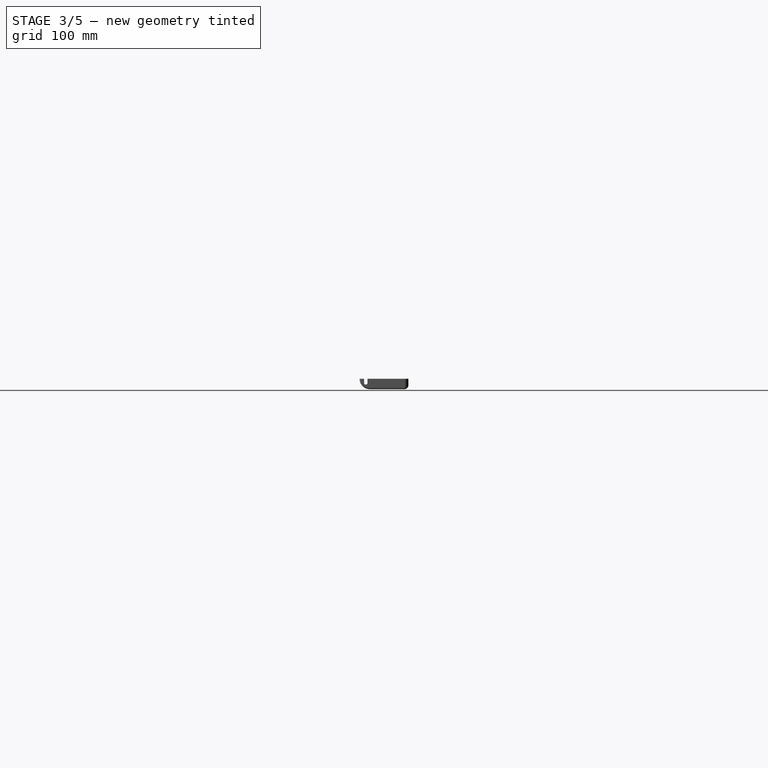
[diagram: stage 3 of 5 — right view after this stage's code; geometry added in this stage tinted green]
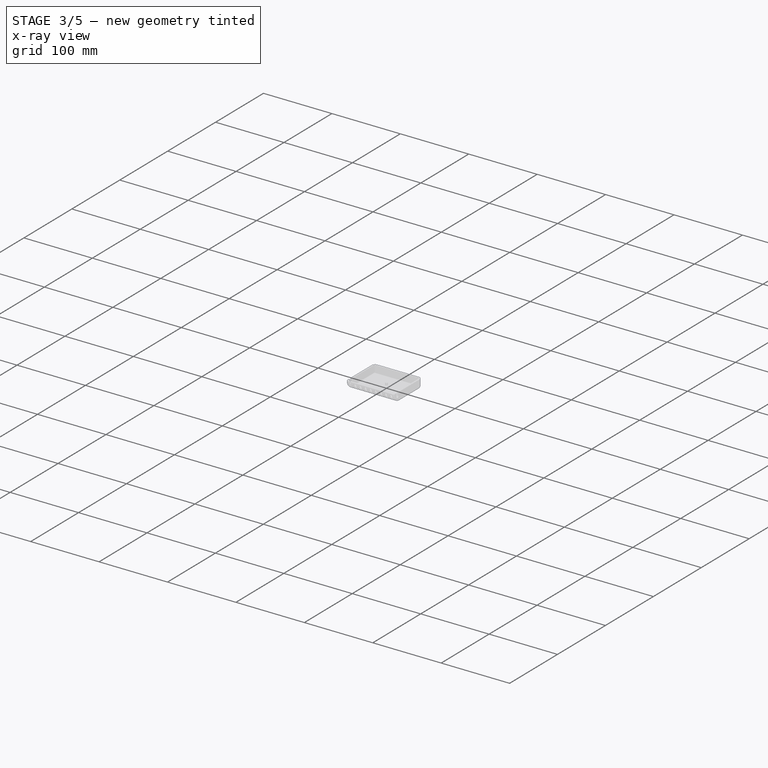
[diagram: stage 3 of 5 — x-ray composite at the iso view; earlier geometry ghosted, this stage's added geometry solid]
FEATURE [Sketcher::SketchObject] Sketch024
  ArcFitTolerance = 1e-06
  AttachmentSupport = -> [Pad005]
  FullyConstrained = true
  MakeInternals = false
  MapMode = 5
  Placement = pos=(33,0,0) rot=(0.57735,0.57735,0.57735;2.0944rad)
  sketch-geometry (5):
    g0: LineSegment [constr] StartX=0 StartY=0 StartZ=0 EndX=0 EndY=10.5 EndZ=0
    g1: LineSegment [constr] StartX=0 StartY=10.5 StartZ=0 EndX=-22 EndY=10.5 EndZ=0
    g2: LineSegment [constr] StartX=-22 StartY=10.5 StartZ=0 EndX=-22 EndY=0 EndZ=0
    g3: LineSegment [constr] StartX=-22 StartY=0 StartZ=0 EndX=0 EndY=0 EndZ=0
    g4: Circle CenterX=-22 CenterY=10.5 CenterZ=0 NormalX=0 NormalY=0 NormalZ=1 AngleXU=0 Radius=10.5
  constraints (13):
    c: Coincident(g0,g1)
    c: Coincident(g1,g2)
    c: Coincident(g2,g3)
    c: Coincident(g3,g0)
    c: Vertical(g0)
    c: Vertical(g2)
    c: Horizontal(g1)
    c: Horizontal(g3)
    c: Coincident(g0,g-1)
    c: DistanceY(g2,g2) = 10.5
    c: DistanceX(g1,g1) = 22
    c: Coincident(g4,g1)
    c: PointOnObject(g2,g4)
FEATURE [PartDesign::Pad] Pad006
  BaseFeature = -> Pad005
  Direction = (1,0,0)
  Length = 66
  Length2 = 10
  Profile = -> Sketch024
  ReferenceAxis = -> Sketch024 [N_Axis]
  Refine = true
  Reversed = true
  Suppressed = false
  Type = 0
FEATURE [Sketcher::SketchObject] Sketch025
  ArcFitTolerance = 1e-06
  AttachmentSupport = -> [Pad006]
  FullyConstrained = true
  MakeInternals = false
  MapMode = 5
  Placement = pos=(0,0,21) rot=(0,0,1;0rad)
  sketch-geometry (5):
    g0: LineSegment StartX=-40 StartY=40 StartZ=0 EndX=-40 EndY=-40 EndZ=0
    g1: LineSegment StartX=-40 StartY=-40 StartZ=0 EndX=40 EndY=-40 EndZ=0
    g2: LineSegment StartX=40 StartY=-40 StartZ=0 EndX=40 EndY=40 EndZ=0
    g3: LineSegment StartX=40 StartY=40 StartZ=0 EndX=-40 EndY=40 EndZ=0
    g4: GeomPoint [constr] X=0 Y=0 Z=0
  constraints (12):
    c: Coincident(g0,g1)
    c: Coincident(g1,g2)
    c: Coincident(g2,g3)
    c: Coincident(g3,g0)
    c: Vertical(g0)
    c: Vertical(g2)
    c: Horizontal(g1)
    c: Horizontal(g3)
    c: Symmetric(g2,g0,g4)
    c: Coincident(g4,g-1)
    c: Equal(g3,g0)
    c: DistanceX(g3,g3) = 80
FEATURE [PartDesign::Pocket] Pocket018
  BaseFeature = -> Pad006
  Direction = (0,0,-1)
  Length = 10.5
  Length2 = 5
  Profile = -> Sketch025
  ReferenceAxis = -> Sketch025 [N_Axis]
  Refine = true
  Suppressed = false
  Type = 0
FEATURE [PartDesign::Thickness] Thickness002
  Base = -> Pocket018 [Face6]
  BaseFeature = -> Pocket018
  Intersection = false
  Join = 1
  Mode = 0
  Refine = true
  SupportTransform = false
  Suppressed = false
  Value = 2
FEATURE [Sketcher::SketchObject] Sketch026
  ArcFitTolerance = 1e-06
  AttachmentOffset = pos=(0,0,44) rot=(0,0,1;0rad)
  AttachmentSupport = -> [Thickness002]
  FullyConstrained = true
  MakeInternals = false
  MapMode = 5
  Placement = pos=(0,-22,9.8e-15) rot=(1,0,0;1.5708rad)
  sketch-geometry (13):
    g0: LineSegment [constr] StartX=-2 StartY=-7 StartZ=0 EndX=2 EndY=-7 EndZ=0
    g1: LineSegment [constr] StartX=2 StartY=-7 StartZ=0 EndX=2 EndY=7 EndZ=0
    g2: LineSegment [constr] StartX=2 StartY=7 StartZ=0 EndX=-2 EndY=7 EndZ=0
    g3: LineSegment [constr] StartX=-2 StartY=7 StartZ=0 EndX=-2 EndY=-7 EndZ=0
    g4: GeomPoint [constr] X=0 Y=0 Z=0
    g5: LineSegment [constr] StartX=-2 StartY=7 StartZ=0 EndX=-2 EndY=0 EndZ=0
    g6: LineSegment [constr] StartX=-2 StartY=0 StartZ=0 EndX=2 EndY=0 EndZ=0
    g7: LineSegment [constr] StartX=2 StartY=0 StartZ=0 EndX=2 EndY=7 EndZ=0
    g8: LineSegment [constr] StartX=2 StartY=7 StartZ=0 EndX=-2 EndY=7 EndZ=0
    g9: LineSegment StartX=-2 StartY=7 StartZ=0 EndX=-2 EndY=0 EndZ=0
    g10: LineSegment StartX=-2 StartY=0 StartZ=0 EndX=2 EndY=0 EndZ=0
    g11: LineSegment StartX=2 StartY=0 StartZ=0 EndX=2 EndY=7 EndZ=0
    g12: LineSegment StartX=2 StartY=7 StartZ=0 EndX=-2 EndY=7 EndZ=0
  constraints (32):
    c: Coincident(g0,g1)
    c: Coincident(g1,g2)
    c: Coincident(g2,g3)
    c: Coincident(g3,g0)
    c: Horizontal(g0)
    c: Horizontal(g2)
    c: Vertical(g1)
    c: Vertical(g3)
    c: Symmetric(g2,g0,g4)
    c: Coincident(g4,g-1)
    c: DistanceX(g2,g2) = 4
    c: DistanceY(g1,g1) = 14
    c: Coincident(g5,g6)
    c: Coincident(g6,g7)
    c: Coincident(g7,g8)
    c: Coincident(g8,g5)
    c: Vertical(g5)
    c: Vertical(g7)
    c: Horizontal(g6)
    c: Horizontal(g8)
    c: Coincident(g5,g2)
    c: Symmetric(g1,g1,g6)
    c: Coincident(g9,g10)
    c: Coincident(g10,g11)
    c: Coincident(g11,g12)
    c: Coincident(g12,g9)
    c: Vertical(g9)
    c: Vertical(g11)
    c: Horizontal(g10)
    c: Horizontal(g12)
    c: Coincident(g9,g2)
    c: Coincident(g10,g6)
FEATURE [PartDesign::Mirrored] Mirrored002
  MirrorPlane = -> Sketch026 [V_Axis]
  Refine = true
  Suppressed = false
  TransformMode = 0
FEATURE [PartDesign::Pocket] Pocket019
  BaseFeature = -> Thickness002
  Direction = (0,1,-2e-16)
  Length = 40
  Length2 = 5
  Profile = -> Sketch026
  ReferenceAxis = -> Sketch026 [N_Axis]
  Refine = true
  Reversed = true
  Suppressed = false
  Type = 0
FEATURE [Sketcher::SketchObject] Sketch027
  ArcFitTolerance = 1e-06
  AttachmentOffset = pos=(0,0,44) rot=(0,0,1;0rad)
  AttachmentSupport = -> [Thickness002]
  FullyConstrained = true
  MakeInternals = false
  MapMode = 5
  Placement = pos=(0,-22,9.8e-15) rot=(1,0,0;1.5708rad)
  sketch-geometry (11):
    g0: LineSegment [constr] StartX=-2 StartY=-7 StartZ=0 EndX=2 EndY=-7 EndZ=0
    g1: LineSegment [constr] StartX=2 StartY=-7 StartZ=0 EndX=2 EndY=7 EndZ=0
    g2: LineSegment [constr] StartX=2 StartY=7 StartZ=0 EndX=-2 EndY=7 EndZ=0
    g3: LineSegment [constr] StartX=-2 StartY=7 StartZ=0 EndX=-2 EndY=-7 EndZ=0
    g4: GeomPoint [constr] X=0 Y=0 Z=0
    g5: LineSegment [constr] StartX=-2 StartY=7 StartZ=0 EndX=-2 EndY=0 EndZ=0
    g6: LineSegment [constr] StartX=-2 StartY=0 StartZ=0 EndX=2 EndY=0 EndZ=0
    g7: LineSegment [constr] StartX=2 StartY=0 StartZ=0 EndX=2 EndY=7 EndZ=0
    g8: LineSegment [constr] StartX=2 StartY=7 StartZ=0 EndX=-2 EndY=7 EndZ=0
    g9: LineSegment [constr] StartX=-2 StartY=7 StartZ=0 EndX=0 EndY=7 EndZ=0
    g10: Circle CenterX=0 CenterY=7 CenterZ=0 NormalX=0 NormalY=0 NormalZ=1 AngleXU=0 Radius=2
  constraints (26):
    c: Coincident(g0,g1)
    c: Coincident(g1,g2)
    c: Coincident(g2,g3)
    c: Coincident(g3,g0)
    c: Horizontal(g0)
    c: Horizontal(g2)
    c: Vertical(g1)
    c: Vertical(g3)
    c: Symmetric(g2,g0,g4)
    c: Coincident(g4,g-1)
    c: DistanceX(g2,g2) = 4
    c: DistanceY(g1,g1) = 14
    c: Coincident(g5,g6)
    c: Coincident(g6,g7)
    c: Coincident(g7,g8)
    c: Coincident(g8,g5)
    c: Vertical(g5)
    c: Vertical(g7)
    c: Horizontal(g6)
    c: Horizontal(g8)
    c: Coincident(g5,g2)
    c: Symmetric(g1,g1,g6)
    c: Coincident(g9,g2)
    c: Symmetric(g2,g2,g9)
    c: Coincident(g10,g9)
    c: Diameter(g10) = 4
FEATURE [PartDesign::Pocket] Pocket020
  BaseFeature = -> Pocket019
  Direction = (0,1,-2e-16)
  Length = 40
  Length2 = 5
  Profile = -> Sketch027
  ReferenceAxis = -> Sketch027 [N_Axis]
  Refine = true
  Reversed = true
  Suppressed = false
  Type = 0
FEATURE [PartDesign::MultiTransform] MultiTransform002
  BaseFeature = -> Pocket020
  Originals = -> [Pocket019,Pocket020]
  Refine = true
  Suppressed = false
  TransformMode = 0
  Transformations = -> [LinearPattern002,Mirrored002]
FEATURE [Sketcher::SketchObject] Sketch028
  ArcFitTolerance = 1e-06
  AttachmentSupport = -> [MultiTransform002]
  FullyConstrained = true
  MakeInternals = false
  MapMode = 5
  Placement = pos=(35,0,0) rot=(0.57735,0.57735,0.57735;2.0944rad)
  sketch-geometry (8):
    g0: LineSegment [constr] StartX=0 StartY=0 StartZ=0 EndX=0 EndY=10.5 EndZ=0
    g1: LineSegment [constr] StartX=0 StartY=10.5 StartZ=0 EndX=-27 EndY=10.5 EndZ=0
    g2: LineSegment [constr] StartX=-27 StartY=10.5 StartZ=0 EndX=-27 EndY=0 EndZ=0
    g3: LineSegment [constr] StartX=-27 StartY=0 StartZ=0 EndX=0 EndY=0 EndZ=0
    g4: ArcOfCircle CenterX=-27 CenterY=10.5 CenterZ=0 NormalX=0 NormalY=0 NormalZ=1 AngleXU=0 Radius=2 StartAngle=7.7969e-12 EndAngle=3.14159
    g5: ArcOfCircle CenterX=-27 CenterY=5.5 CenterZ=0 NormalX=0 NormalY=0 NormalZ=1 AngleXU=0 Radius=2 StartAngle=3.14159 EndAngle=6.28319
    g6: LineSegment StartX=-25 StartY=10.5 StartZ=0 EndX=-25 EndY=5.5 EndZ=0
    g7: LineSegment StartX=-29 StartY=10.5 StartZ=0 EndX=-29 EndY=5.5 EndZ=0
  constraints (20):
    c: Coincident(g0,g1)
    c: Coincident(g1,g2)
    c: Coincident(g2,g3)
    c: Coincident(g3,g0)
    c: Vertical(g0)
    c: Vertical(g2)
    c: Horizontal(g1)
    c: Horizontal(g3)
    c: Coincident(g0,g-1)
    c: DistanceY(g0,g0) = 10.5
    c: DistanceX(g1,g1) = 27
    c: Tangent(g4,g6) = 1.5708
    c: Tangent(g4,g7) = -1.5708
    c: Tangent(g5,g6) = 1.5708
    c: Tangent(g5,g7) = -1.5708
    c: Equal(g4,g5)
    c: Coincident(g4,g1)
    c: Vertical(g6)
    c: Radius(g4) = 2
    c: DistanceY(g6,g6) = 5
FEATURE [PartDesign::Pocket] Pocket021
  BaseFeature = -> MultiTransform002
  Direction = (-1,0,0)
  Length = 100
  Length2 = 5
  Profile = -> Sketch028
  ReferenceAxis = -> Sketch028 [N_Axis]
  Refine = true
  Suppressed = false
  Type = 0
FEATURE [PartDesign::Fillet] Fillet006
  Base = -> Pocket021 [Edge105,Edge100]
  BaseFeature = -> Pocket021
  Radius = 2
  Refine = true
  SupportTransform = false
  Suppressed = false
  UseAllEdges = false
FEATURE [PartDesign::Fillet] Fillet007
  Base = -> Fillet006 [Edge11,Edge106]
  BaseFeature = -> Fillet006
  Radius = 5
  Refine = true
  SupportTransform = false
  Suppressed = false
  UseAllEdges = false
FEATURE [Sketcher::SketchObject] Sketch029
  ArcFitTolerance = 1e-06
  AttachmentSupport = -> [Fillet007]
  FullyConstrained = true
  MakeInternals = false
  MapMode = 5
  Placement = pos=(-35,0,0) rot=(0.57735,-0.57735,-0.57735;2.0944rad)
  sketch-geometry (12):
    g0: LineSegment [constr] StartX=0 StartY=0 StartZ=0 EndX=0 EndY=3 EndZ=0
    g1: LineSegment [constr] StartX=0 StartY=3 StartZ=0 EndX=-19 EndY=3 EndZ=0
    g2: LineSegment [constr] StartX=-19 StartY=3 StartZ=0 EndX=-19 EndY=0 EndZ=0
    g3: LineSegment [constr] StartX=-19 StartY=0 StartZ=0 EndX=0 EndY=0 EndZ=0
    g4: LineSegment [constr] StartX=-19 StartY=0 StartZ=0 EndX=-12.5 EndY=0 EndZ=0
    g5: LineSegment [constr] StartX=-12.5 StartY=0 StartZ=0 EndX=-12.5 EndY=3 EndZ=0
    g6: LineSegment [constr] StartX=-12.5 StartY=3 StartZ=0 EndX=-19 EndY=3 EndZ=0
    g7: LineSegment [constr] StartX=-19 StartY=3 StartZ=0 EndX=-19 EndY=0 EndZ=0
    g8: LineSegment StartX=-12.5 StartY=3 StartZ=0 EndX=-4.5 EndY=3 EndZ=0
    g9: LineSegment StartX=-4.5 StartY=3 StartZ=0 EndX=-4.5 EndY=6 EndZ=0
    g10: LineSegment StartX=-4.5 StartY=6 StartZ=0 EndX=-12.5 EndY=6 EndZ=0
    g11: LineSegment StartX=-12.5 StartY=6 StartZ=0 EndX=-12.5 EndY=3 EndZ=0
  constraints (33):
    c: Coincident(g0,g1)
    c: Coincident(g1,g2)
    c: Coincident(g2,g3)
    c: Coincident(g3,g0)
    c: Vertical(g0)
    c: Vertical(g2)
    c: Horizontal(g1)
    c: Horizontal(g3)
    c: Coincident(g0,g-1)
    c: DistanceX(g3,g3) = 19
    c: DistanceY(g2,g2) = 3
    c: Coincident(g4,g5)
    c: Coincident(g5,g6)
    c: Coincident(g6,g7)
    c: Coincident(g7,g4)
    c: Horizontal(g4)
    c: Horizontal(g6)
    c: Vertical(g5)
    c: Vertical(g7)
    c: Coincident(g4,g2)
    c: Equal(g5,g2)
    c: DistanceX(g2,g4) = 6.5
    c: Coincident(g8,g9)
    c: Coincident(g9,g10)
    c: Coincident(g10,g11)
    c: Coincident(g11,g8)
    c: Horizontal(g8)
    c: Horizontal(g10)
    c: Vertical(g9)
    c: Vertical(g11)
    c: Coincident(g8,g5)
    c: DistanceX(g10,g10) = 8
    c: DistanceY(g9,g9) = 3
FEATURE [PartDesign::Pocket] Pocket022
  BaseFeature = -> Fillet007
  Direction = (1,0,0)
  Length = 5
  Length2 = 5
  Profile = -> Sketch029
  ReferenceAxis = -> Sketch029 [N_Axis]
  Refine = true
  Suppressed = false
  Type = 0
FEATURE [Sketcher::SketchObject] Sketch030
  ArcFitTolerance = 1e-06
  AttachmentSupport = -> [Pocket022]
  FullyConstrained = true
  MakeInternals = false
  MapMode = 5
  Placement = pos=(0,24,0) rot=(0,0.707107,0.707107;3.14159rad)
  sketch-geometry (8):
    g0: LineSegment [constr] StartX=0 StartY=0 StartZ=0 EndX=33 EndY=0 EndZ=0
    g1: LineSegment [constr] StartX=33 StartY=0 StartZ=0 EndX=33 EndY=2.5 EndZ=0
    g2: LineSegment [constr] StartX=33 StartY=2.5 StartZ=0 EndX=0 EndY=2.5 EndZ=0
    g3: LineSegment [constr] StartX=0 StartY=2.5 StartZ=0 EndX=0 EndY=0 EndZ=0
    g4: LineSegment StartX=33 StartY=2.5 StartZ=0 EndX=33 EndY=4 EndZ=0
    g5: LineSegment StartX=33 StartY=4 StartZ=0 EndX=20 EndY=4 EndZ=0
    g6: LineSegment StartX=20 StartY=4 StartZ=0 EndX=20 EndY=2.5 EndZ=0
    g7: LineSegment StartX=20 StartY=2.5 StartZ=0 EndX=33 EndY=2.5 EndZ=0
  constraints (22):
    c: Coincident(g0,g1)
    c: Coincident(g1,g2)
    c: Coincident(g2,g3)
    c: Coincident(g3,g0)
    c: Horizontal(g0)
    c: Horizontal(g2)
    c: Vertical(g1)
    c: Vertical(g3)
    c: Coincident(g0,g-1)
    c: DistanceY(g1,g1) = 2.5
    c: DistanceX(g2,g2) = 33
    c: Coincident(g4,g5)
    c: Coincident(g5,g6)
    c: Coincident(g6,g7)
    c: Coincident(g7,g4)
    c: Vertical(g4)
    c: Vertical(g6)
    c: Horizontal(g5)
    c: Horizontal(g7)
    c: Coincident(g4,g1)
    c: DistanceX(g5,g5) = 13
    c: DistanceY(g6,g6) = 1.5
FEATURE [PartDesign::Pocket] Pocket023
  BaseFeature = -> Pocket022
  Direction = (0,-1,2e-16)
  Length = 5
  Length2 = 5
  Profile = -> Sketch030
  ReferenceAxis = -> Sketch030 [N_Axis]
  Refine = true
  Suppressed = false
  Type = 0
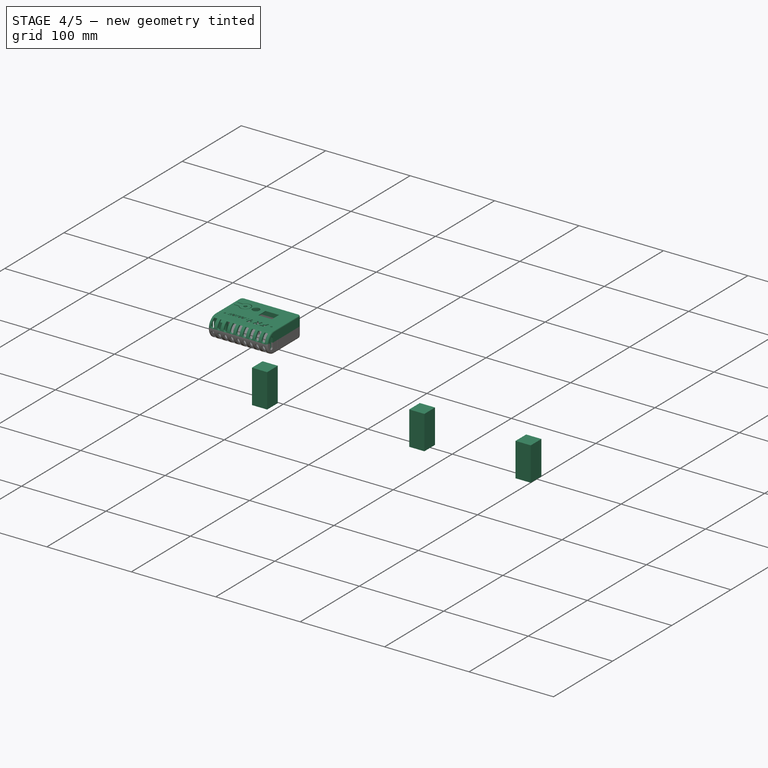
[diagram: stage 4 of 5 — iso view after this stage's code; geometry added in this stage tinted green]
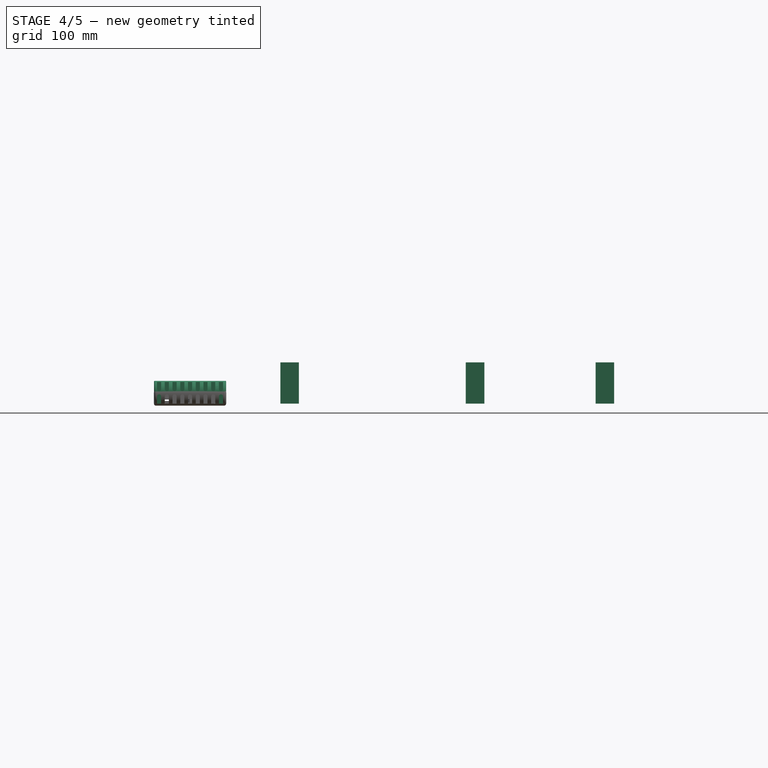
[diagram: stage 4 of 5 — front view after this stage's code; geometry added in this stage tinted green]
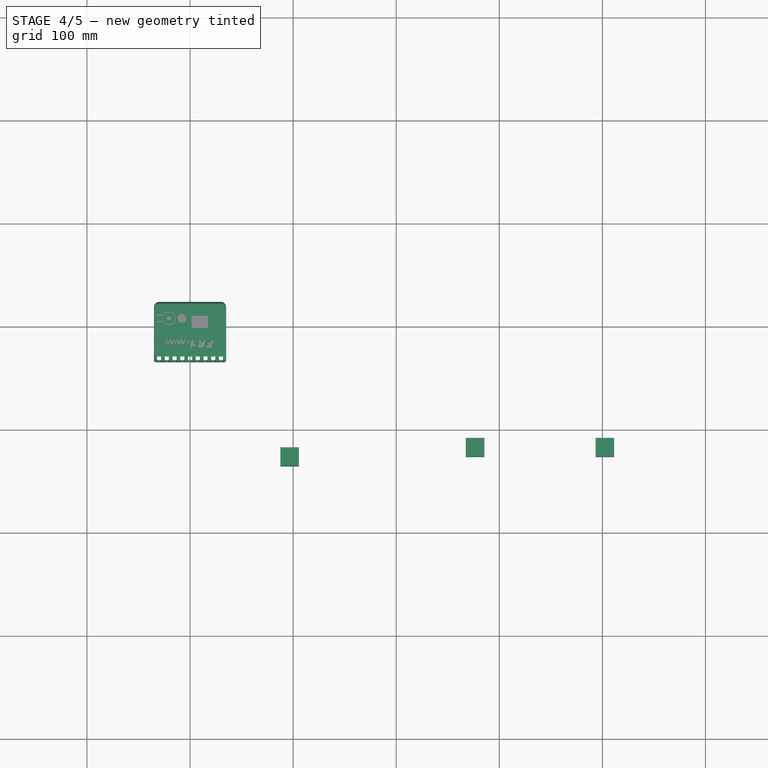
[diagram: stage 4 of 5 — top view after this stage's code; geometry added in this stage tinted green]
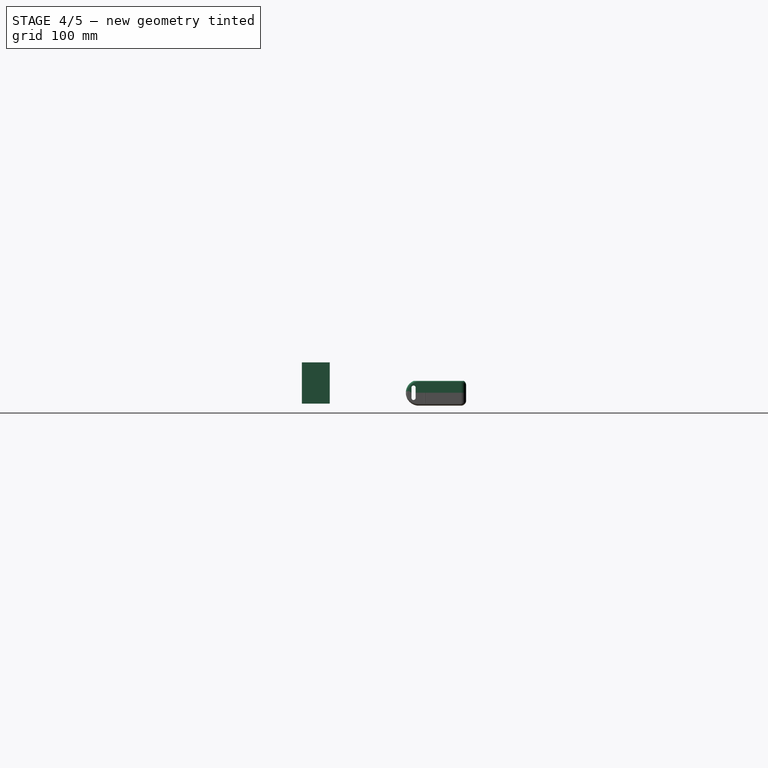
[diagram: stage 4 of 5 — right view after this stage's code; geometry added in this stage tinted green]
FEATURE [Part::Extrusion] Extrude008
  Base = -> path010
  Dir = (0,0,1)
  DirMode = 0
  FaceMakerClass = Part::FaceMakerBullseye
  FaceMakerMode = 3
  LengthFwd = 40
  LengthRev = 0
  Solid = false
  Symmetric = false
FEATURE [Part::Extrusion] Extrude009
  Base = -> path011
  Dir = (0,0,1)
  DirMode = 0
  FaceMakerClass = Part::FaceMakerBullseye
  FaceMakerMode = 3
  LengthFwd = 40
  LengthRev = 0
  Solid = false
  Symmetric = false
FEATURE [Part::Extrusion] Extrude010
  Base = -> path012
  Dir = (0,0,1)
  DirMode = 0
  FaceMakerClass = Part::FaceMakerBullseye
  FaceMakerMode = 3
  LengthFwd = 40
  LengthRev = 0
  Solid = false
  Symmetric = false
FEATURE [Sketcher::SketchObject] Sketch031
  ArcFitTolerance = 1e-06
  AttachmentSupport = -> [Pocket023]
  FullyConstrained = true
  MakeInternals = false
  MapMode = 5
  Placement = pos=(0,0,5e-15) rot=(0,0,1;0rad)
  sketch-geometry (21):
    g0: LineSegment [constr] StartX=-33 StartY=22 StartZ=0 EndX=-33 EndY=-22 EndZ=0
    g1: LineSegment [constr] StartX=-33 StartY=-22 StartZ=0 EndX=33 EndY=-22 EndZ=0
    g2: LineSegment [constr] StartX=33 StartY=-22 StartZ=0 EndX=33 EndY=22 EndZ=0
    g3: LineSegment [constr] StartX=33 StartY=22 StartZ=0 EndX=-33 EndY=22 EndZ=0
    g4: GeomPoint [constr] X=0 Y=0 Z=0
    g5: LineSegment [constr] StartX=-33 StartY=22 StartZ=0 EndX=-33 EndY=18.5 EndZ=0
    g6: LineSegment [constr] StartX=-33 StartY=18.5 StartZ=0 EndX=-28 EndY=18.5 EndZ=0
    g7: LineSegment [constr] StartX=-28 StartY=18.5 StartZ=0 EndX=-28 EndY=22 EndZ=0
    g8: LineSegment [constr] StartX=-28 StartY=22 StartZ=0 EndX=-33 EndY=22 EndZ=0
    g9: LineSegment [constr] StartX=-28 StartY=18.5 StartZ=0 EndX=-28 EndY=-16 EndZ=0
    g10: LineSegment [constr] StartX=-28 StartY=-16 StartZ=0 EndX=27 EndY=-16 EndZ=0
    g11: LineSegment [constr] StartX=27 StartY=-16 StartZ=0 EndX=27 EndY=18.5 EndZ=0
    g12: LineSegment [constr] StartX=27 StartY=18.5 StartZ=0 EndX=-28 EndY=18.5 EndZ=0
    g13: ArcOfCircle CenterX=-28 CenterY=-16 CenterZ=0 NormalX=0 NormalY=0 NormalZ=1 AngleXU=0 Radius=2.1 StartAngle=4.71239 EndAngle=7.85398
    g14: ArcOfCircle CenterX=-33 CenterY=-16 CenterZ=0 NormalX=0 NormalY=0 NormalZ=1 AngleXU=0 Radius=2.1 StartAngle=1.5708 EndAngle=4.71239
    g15: LineSegment StartX=-28 StartY=-18.1 StartZ=0 EndX=-33 EndY=-18.1 EndZ=0
    g16: LineSegment StartX=-28 StartY=-13.9 StartZ=0 EndX=-33 EndY=-13.9 EndZ=0
    g17: ArcOfCircle CenterX=27 CenterY=-16 CenterZ=0 NormalX=0 NormalY=0 NormalZ=1 AngleXU=0 Radius=2.1 StartAngle=1.5708 EndAngle=4.71239
    g18: ArcOfCircle CenterX=33 CenterY=-16 CenterZ=0 NormalX=0 NormalY=0 NormalZ=1 AngleXU=0 Radius=2.1 StartAngle=4.71239 EndAngle=7.85398
    g19: LineSegment StartX=27 StartY=-13.9 StartZ=0 EndX=33 EndY=-13.9 EndZ=0
    g20: LineSegment StartX=27 StartY=-18.1 StartZ=0 EndX=33 EndY=-18.1 EndZ=0
  constraints (52):
    c: Coincident(g0,g1)
    c: Coincident(g1,g2)
    c: Coincident(g2,g3)
    c: Coincident(g3,g0)
    c: Vertical(g0)
    c: Vertical(g2)
    c: Horizontal(g1)
    c: Horizontal(g3)
    c: Symmetric(g2,g0,g4)
    c: Coincident(g4,g-1)
    c: DistanceY(g2,g2) = 44
    c: DistanceX(g1,g1) = 66
    c: Coincident(g5,g6)
    c: Coincident(g6,g7)
    c: Coincident(g7,g8)
    c: Coincident(g8,g5)
    c: Vertical(g5)
    c: Vertical(g7)
    c: Horizontal(g6)
    c: Horizontal(g8)
    c: Coincident(g5,g0)
    c: DistanceY(g7,g7) = 3.5
    c: DistanceX(g6,g6) = 5
    c: Coincident(g9,g10)
    c: Coincident(g10,g11)
    c: Coincident(g11,g12)
    c: Coincident(g12,g9)
    c: Vertical(g9)
    c: Vertical(g11)
    c: Horizontal(g10)
    c: Horizontal(g12)
    c: Coincident(g9,g6)
    c: DistanceY(g9,g9) = 34.5
    c: DistanceX(g12,g12) = 55
    c: Tangent(g13,g15) = 1.5708
    c: Tangent(g13,g16) = -1.5708
    c: Tangent(g14,g15) = 1.5708
    c: Tangent(g14,g16) = -1.5708
    c: Equal(g13,g14)
    c: Coincident(g13,g9)
    c: Horizontal(g15)
    c: DistanceX(g16,g16) = 5
    c: Radius(g13) = 2.1
    c: Tangent(g17,g19) = 1.5708
    c: Tangent(g17,g20) = -1.5708
    c: Tangent(g18,g19) = 1.5708
    c: Tangent(g18,g20) = -1.5708
    c: Equal(g17,g18)
    c: Coincident(g17,g10)
    c: PointOnObject(g18,g2)
    c: Horizontal(g19)
    c: Radius(g18) = 2.1
FEATURE [PartDesign::Pad] Pad007
  BaseFeature = -> Pocket023
  Direction = (0,0,1)
  Length = 13
  Length2 = 10
  Profile = -> Sketch031
  ReferenceAxis = -> Sketch031 [N_Axis]
  Refine = true
  Suppressed = false
  Type = 0
FEATURE [Sketcher::SketchObject] Sketch032
  ArcFitTolerance = 1e-06
  AttachmentSupport = -> [Pad007]
  FullyConstrained = true
  MakeInternals = false
  MapMode = 5
  Placement = pos=(0,0,13) rot=(0,0,1;0rad)
  sketch-geometry (15):
    g0: LineSegment [constr] StartX=-33 StartY=22 StartZ=0 EndX=-33 EndY=-22 EndZ=0
    g1: LineSegment [constr] StartX=-33 StartY=-22 StartZ=0 EndX=33 EndY=-22 EndZ=0
    g2: LineSegment [constr] StartX=33 StartY=-22 StartZ=0 EndX=33 EndY=22 EndZ=0
    g3: LineSegment [constr] StartX=33 StartY=22 StartZ=0 EndX=-33 EndY=22 EndZ=0
    g4: GeomPoint [constr] X=0 Y=0 Z=0
    g5: LineSegment [constr] StartX=-33 StartY=22 StartZ=0 EndX=-33 EndY=18.5 EndZ=0
    g6: LineSegment [constr] StartX=-33 StartY=18.5 StartZ=0 EndX=-28 EndY=18.5 EndZ=0
    g7: LineSegment [constr] StartX=-28 StartY=18.5 StartZ=0 EndX=-28 EndY=22 EndZ=0
    g8: LineSegment [constr] StartX=-28 StartY=22 StartZ=0 EndX=-33 EndY=22 EndZ=0
    g9: LineSegment [constr] StartX=-28 StartY=18.5 StartZ=0 EndX=-28 EndY=-16 EndZ=0
    g10: LineSegment [constr] StartX=-28 StartY=-16 StartZ=0 EndX=27 EndY=-16 EndZ=0
    g11: LineSegment [constr] StartX=27 StartY=-16 StartZ=0 EndX=27 EndY=18.5 EndZ=0
    g12: LineSegment [constr] StartX=27 StartY=18.5 StartZ=0 EndX=-28 EndY=18.5 EndZ=0
    g13: Circle CenterX=-28 CenterY=-16 CenterZ=0 NormalX=0 NormalY=0 NormalZ=1 AngleXU=0 Radius=1
    g14: Circle CenterX=27 CenterY=-16 CenterZ=0 NormalX=0 NormalY=0 NormalZ=1 AngleXU=0 Radius=1
  constraints (38):
    c: Coincident(g0,g1)
    c: Coincident(g1,g2)
    c: Coincident(g2,g3)
    c: Coincident(g3,g0)
    c: Vertical(g0)
    c: Vertical(g2)
    c: Horizontal(g1)
    c: Horizontal(g3)
    c: Symmetric(g2,g0,g4)
    c: Coincident(g4,g-1)
    c: DistanceY(g2,g2) = 44
    c: DistanceX(g1,g1) = 66
    c: Coincident(g5,g6)
    c: Coincident(g6,g7)
    c: Coincident(g7,g8)
    c: Coincident(g8,g5)
    c: Vertical(g5)
    c: Vertical(g7)
    c: Horizontal(g6)
    c: Horizontal(g8)
    c: Coincident(g5,g0)
    c: DistanceY(g7,g7) = 3.5
    c: DistanceX(g6,g6) = 5
    c: Coincident(g9,g10)
    c: Coincident(g10,g11)
    c: Coincident(g11,g12)
    c: Coincident(g12,g9)
    c: Vertical(g9)
    c: Vertical(g11)
    c: Horizontal(g10)
    c: Horizontal(g12)
    c: Coincident(g9,g6)
    c: DistanceY(g9,g9) = 34.5
    c: DistanceX(g12,g12) = 55
    c: Coincident(g13,g9)
    c: Coincident(g14,g10)
    c: Equal(g14,g13)
    c: Diameter(g13) = 2
FEATURE [PartDesign::Pocket] Pocket024
  BaseFeature = -> Pad007
  Direction = (0,0,-1)
  Length = 10
  Length2 = 5
  Profile = -> Sketch032
  ReferenceAxis = -> Sketch032 [N_Axis]
  Refine = true
  Suppressed = false
  Type = 0
FEATURE [Sketcher::SketchObject] Sketch033
  ArcFitTolerance = 1e-06
  AttachmentSupport = -> [Pocket024]
  FullyConstrained = true
  MakeInternals = false
  MapMode = 5
  Placement = pos=(0,0,13) rot=(0,0,1;0rad)
  sketch-geometry (10):
    g0: LineSegment [constr] StartX=0 StartY=0 StartZ=0 EndX=-33 EndY=0 EndZ=0
    g1: LineSegment [constr] StartX=0 StartY=0 StartZ=0 EndX=33 EndY=0 EndZ=0
    g2: LineSegment StartX=-33 StartY=0 StartZ=0 EndX=-35.5 EndY=0 EndZ=0
    g3: LineSegment StartX=-35.5 StartY=0 StartZ=0 EndX=-35.5 EndY=-20 EndZ=0
    g4: LineSegment StartX=-35.5 StartY=-20 StartZ=0 EndX=-33 EndY=-20 EndZ=0
    g5: LineSegment StartX=-33 StartY=-20 StartZ=0 EndX=-33 EndY=0 EndZ=0
    g6: LineSegment StartX=33 StartY=0 StartZ=0 EndX=33 EndY=-20 EndZ=0
    g7: LineSegment StartX=33 StartY=-20 StartZ=0 EndX=35.5 EndY=-20 EndZ=0
    g8: LineSegment StartX=35.5 StartY=-20 StartZ=0 EndX=35.5 EndY=0 EndZ=0
    g9: LineSegment StartX=35.5 StartY=0 StartZ=0 EndX=33 EndY=0 EndZ=0
  constraints (28):
    c: Coincident(g0,g-1)
    c: Horizontal(g0)
    c: Coincident(g1,g0)
    c: Horizontal(g1)
    c: DistanceX(g0,g0) = 33
    c: DistanceX(g1,g1) = 33
    c: Coincident(g2,g3)
    c: Coincident(g3,g4)
    c: Coincident(g4,g5)
    c: Coincident(g5,g2)
    c: Horizontal(g2)
    c: Horizontal(g4)
    c: Vertical(g3)
    c: Vertical(g5)
    c: Coincident(g2,g0)
    c: Coincident(g6,g7)
    c: Coincident(g7,g8)
    c: Coincident(g8,g9)
    c: Coincident(g9,g6)
    c: Vertical(g6)
    c: Vertical(g8)
    c: Horizontal(g7)
    c: Horizontal(g9)
    c: Coincident(g6,g1)
    c: Equal(g5,g6)
    c: Equal(g7,g4)
    c: DistanceX(g4,g4) = 2.5
    c: DistanceY(g3,g3) = 20
FEATURE [PartDesign::Pocket] Pocket025
  BaseFeature = -> Pocket024
  Direction = (0,0,-1)
  Length = 2.5
  Length2 = 5
  Profile = -> Sketch033
  ReferenceAxis = -> Sketch033 [N_Axis]
  Refine = true
  Suppressed = false
  Type = 0
FEATURE [PartDesign::Pad] Pad008
  BaseFeature = -> Pocket025
  Direction = (0,1,0)
  Length = 4
  Length2 = 10
  Profile = -> Pocket025 [Face58,Face61]
  Refine = true
  Suppressed = false
  Type = 0
FEATURE [PartDesign::Pad] Pad009
  BaseFeature = -> Pad008
  Direction = (6e-16,-1,0)
  Length = 2
  Length2 = 10
  Profile = -> Pad008 [Face58,Face61]
  Refine = true
  Suppressed = false
  Type = 0
FEATURE [PartDesign::Fillet] Fillet008
  Base = -> Pad009 [Edge184,Edge206]
  BaseFeature = -> Pad009
  Radius = 2
  Refine = true
  SupportTransform = false
  Suppressed = false
  UseAllEdges = false
FEATURE [PartDesign::Chamfer] Chamfer002
  Angle = 45
  Base = -> Fillet008 [Edge228,Edge230,Edge223,Edge226]
  BaseFeature = -> Fillet008
  ChamferType = 1
  FlipDirection = false
  Refine = true
  Size = 1.3
  Size2 = 2.5
  SupportTransform = false
  Suppressed = false
  UseAllEdges = false
FEATURE [PartDesign::Body] Body001
  AllowCompound = false
  Group = -> [Sketch006,Pad002,Sketch007,Pad003,Sketch008,Pocket004,Thickness001,Sketch009,Pocket005,Sketch010,Pocket006,MultiTransform001,LinearPattern001,Mirrored001,Sketch011,Pocket007,Fillet002,Fillet003,Sketch016,Pocket011,Chamfer001,Sketch017,Pocket012,Sketch018,Pocket013,Sketch019,Pocket014,Sketch020,Pocket015,Sketch022,Pocket017,Sketch,Pocket]
  Origin = -> Origin002
  Placement = pos=(-9.3e-15,0,21) rot=(0,-1,0;3.14159rad)
  Tip = -> Pocket
FEATURE [Part::Cut] Cut001  label="top"
  Base = -> Body001
  Refine = true
  Tool = -> Scale
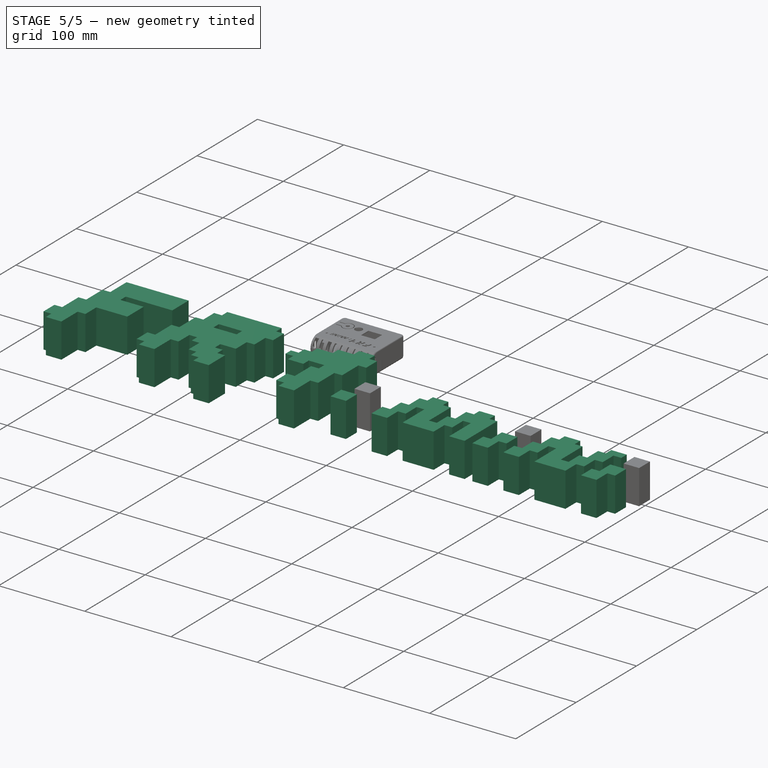
[diagram: stage 5 of 5 — iso view after this stage's code; geometry added in this stage tinted green]
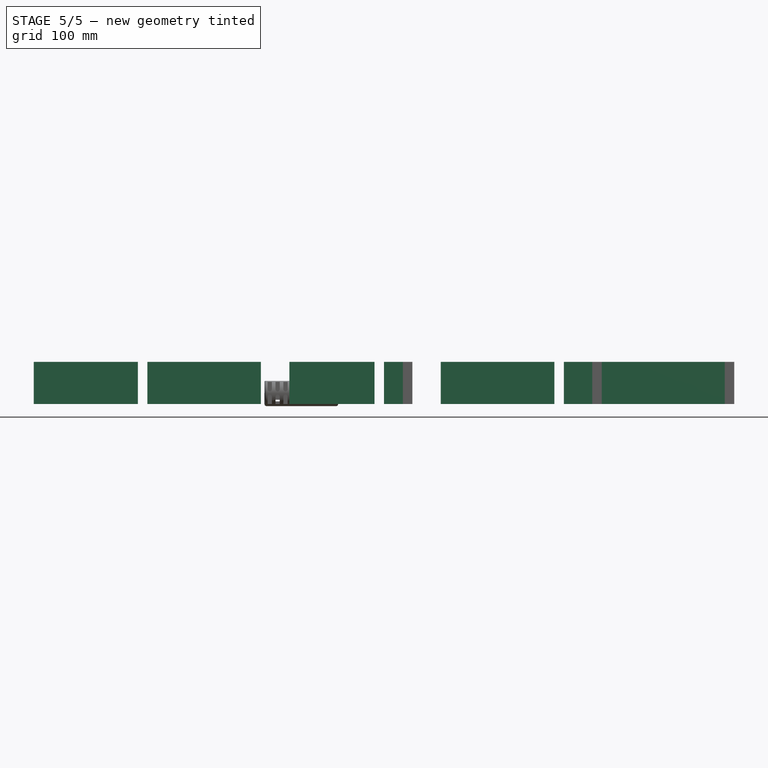
[diagram: stage 5 of 5 — front view after this stage's code; geometry added in this stage tinted green]
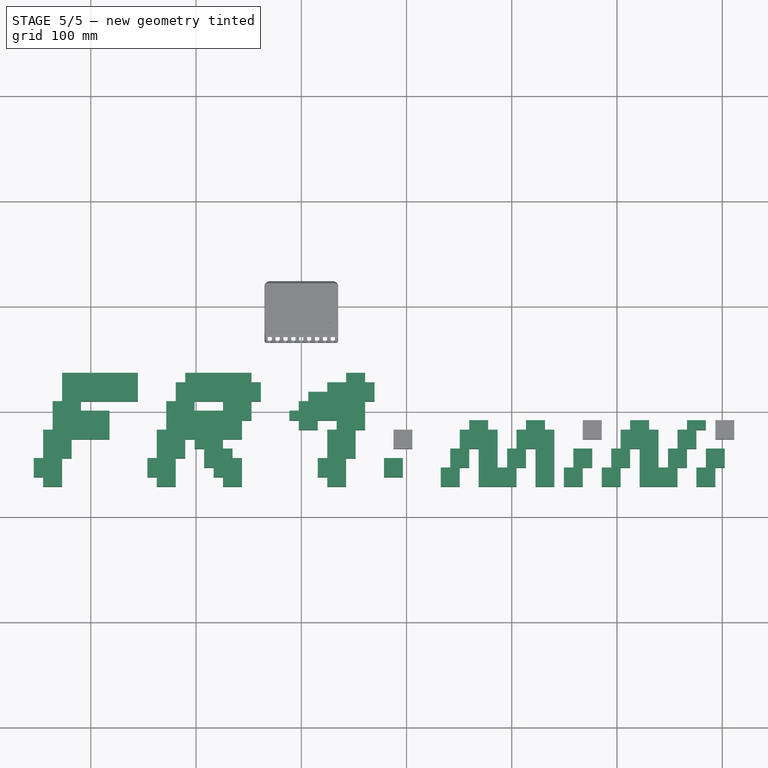
[diagram: stage 5 of 5 — top view after this stage's code; geometry added in this stage tinted green]
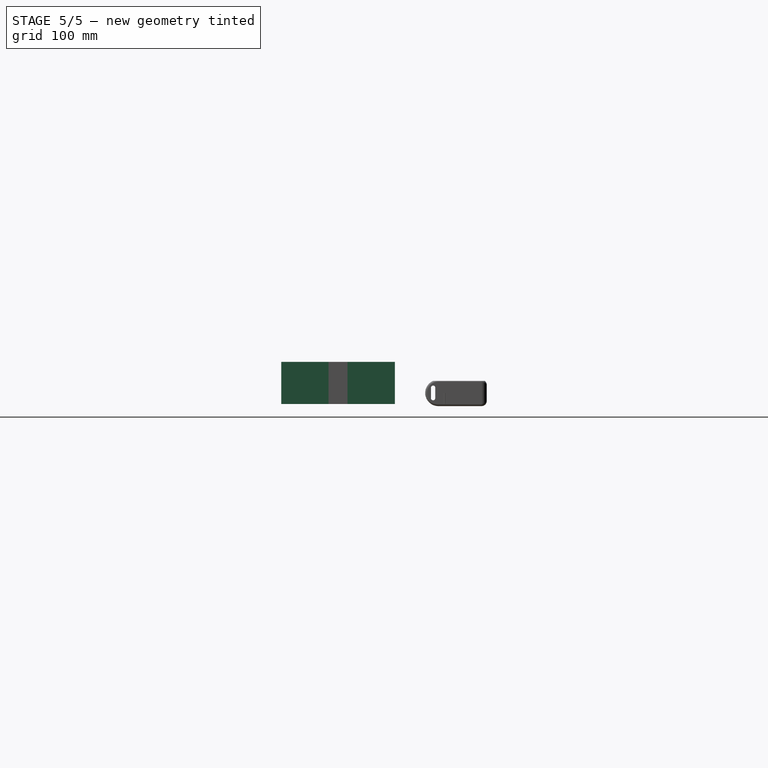
[diagram: stage 5 of 5 — right view after this stage's code; geometry added in this stage tinted green]
FEATURE [Part::Feature] path1
  shape: bbox 98.95 x 108 x 2e-07 mm, 1 faces, 0 solids (baked)
FEATURE [Part::Feature] path002
  shape: bbox 107.9 x 108 x 2e-07 mm, 1 faces, 0 solids (baked)
FEATURE [Part::Feature] path004
  shape: bbox 80.96 x 108 x 2e-07 mm, 1 faces, 0 solids (baked)
FEATURE [Part::Feature] path005
  shape: bbox 108 x 62.97 x 2e-07 mm, 1 faces, 0 solids (baked)
FEATURE [Part::Feature] path006
  shape: bbox 26.99 x 35.98 x 2e-07 mm, 1 faces, 0 solids (baked)
FEATURE [Part::Feature] path007
  shape: bbox 98.95 x 62.97 x 2e-07 mm, 1 faces, 0 solids (baked)
FEATURE [Part::Feature] path008
  shape: bbox 26.99 x 35.98 x 2e-07 mm, 1 faces, 0 solids (baked)
FEATURE [Part::Feature] path009 .. path012  x4 (patterned run collapsed; names and placements below)
  shape: bbox 17.99 x 17.99 x 2e-07 mm, 1 faces, 0 solids (baked)
FEATURE [Part::Feature] path003
  shape: bbox 26.99 x 8.996 x 2e-07 mm, 1 faces, 0 solids (baked)
FEATURE [Part::Extrusion] Extrude
  Base = -> path1
  Dir = (0,0,1)
  DirMode = 0
  FaceMakerClass = Part::FaceMakerBullseye
  FaceMakerMode = 3
  LengthFwd = 40
  LengthRev = 0
  Solid = false
  Symmetric = false
FEATURE [Part::Extrusion] Extrude001
  Base = -> path002
  Dir = (0,0,1)
  DirMode = 0
  FaceMakerClass = Part::FaceMakerBullseye
  FaceMakerMode = 3
  LengthFwd = 40
  LengthRev = 0
  Solid = false
  Symmetric = false
FEATURE [Part::Extrusion] Extrude002
  Base = -> path004
  Dir = (0,0,1)
  DirMode = 0
  FaceMakerClass = Part::FaceMakerBullseye
  FaceMakerMode = 3
  LengthFwd = 40
  LengthRev = 0
  Solid = false
  Symmetric = false
FEATURE [Part::Extrusion] Extrude003
  Base = -> path005
  Dir = (0,0,1)
  DirMode = 0
  FaceMakerClass = Part::FaceMakerBullseye
  FaceMakerMode = 3
  LengthFwd = 40
  LengthRev = 0
  Solid = false
  Symmetric = false
FEATURE [Part::Extrusion] Extrude004
  Base = -> path006
  Dir = (0,0,1)
  DirMode = 0
  FaceMakerClass = Part::FaceMakerBullseye
  FaceMakerMode = 3
  LengthFwd = 40
  LengthRev = 0
  Solid = false
  Symmetric = false
FEATURE [Part::Extrusion] Extrude005
  Base = -> path007
  Dir = (0,0,1)
  DirMode = 0
  FaceMakerClass = Part::FaceMakerBullseye
  FaceMakerMode = 3
  LengthFwd = 40
  LengthRev = 0
  Solid = false
  Symmetric = false
FEATURE [Part::Extrusion] Extrude006
  Base = -> path008
  Dir = (0,0,1)
  DirMode = 0
  FaceMakerClass = Part::FaceMakerBullseye
  FaceMakerMode = 3
  LengthFwd = 40
  LengthRev = 0
  Solid = false
  Symmetric = false
FEATURE [Part::Extrusion] Extrude007
  Base = -> path009
  Dir = (0,0,1)
  DirMode = 0
  FaceMakerClass = Part::FaceMakerBullseye
  FaceMakerMode = 3
  LengthFwd = 40
  LengthRev = 0
  Solid = false
  Symmetric = false
FEATURE [Part::Extrusion] Extrude011
  Base = -> path003
  Dir = (0,0,1)
  DirMode = 0
  FaceMakerClass = Part::FaceMakerBullseye
  FaceMakerMode = 3
  LengthFwd = 40
  LengthRev = 0
  Solid = false
  Symmetric = false
FEATURE [Part::MultiFuse] Fusion
  Refine = true
  Shapes = -> [Extrude010,Extrude,Extrude001,Extrude002,Extrude003,Extrude004,Extrude005,Extrude006,Extrude007,Extrude008,Extrude009]
FEATURE [Part::Cut] Cut
  Base = -> Fusion
  Refine = true
  Tool = -> Extrude011
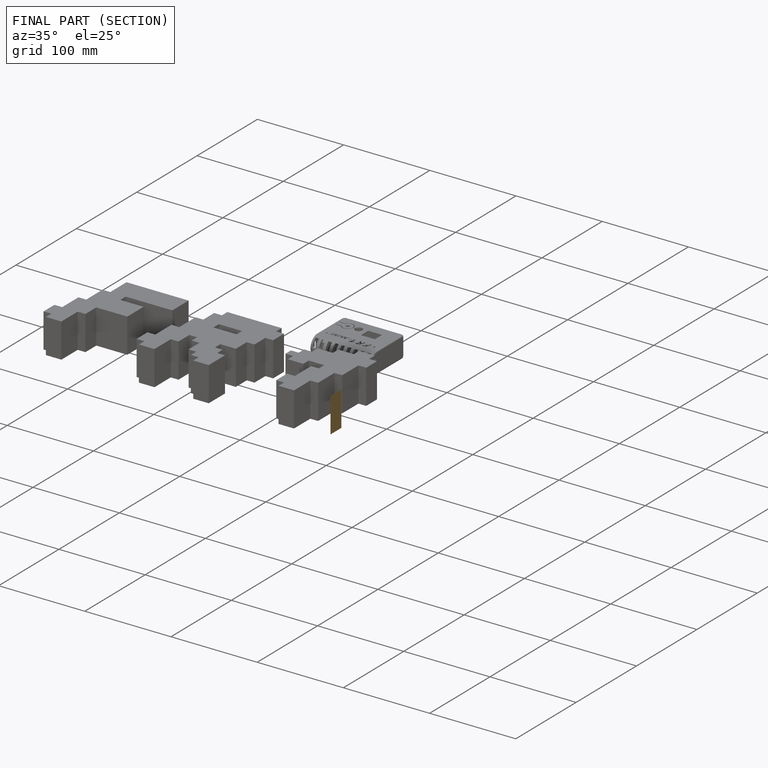
[diagram: finished part — half-section view (interior)]
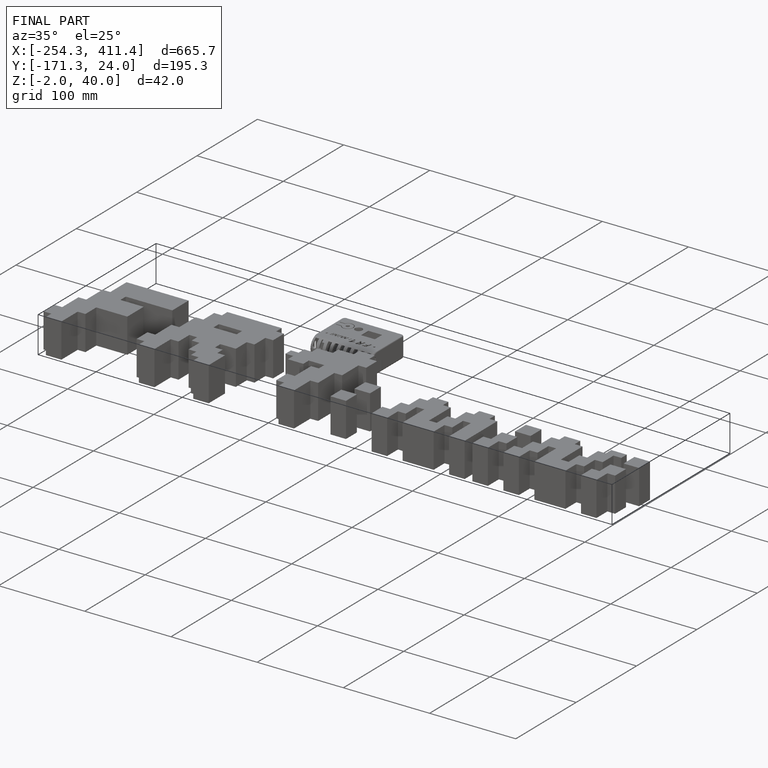
[diagram: finished part — iso view with bounding-box wireframe]
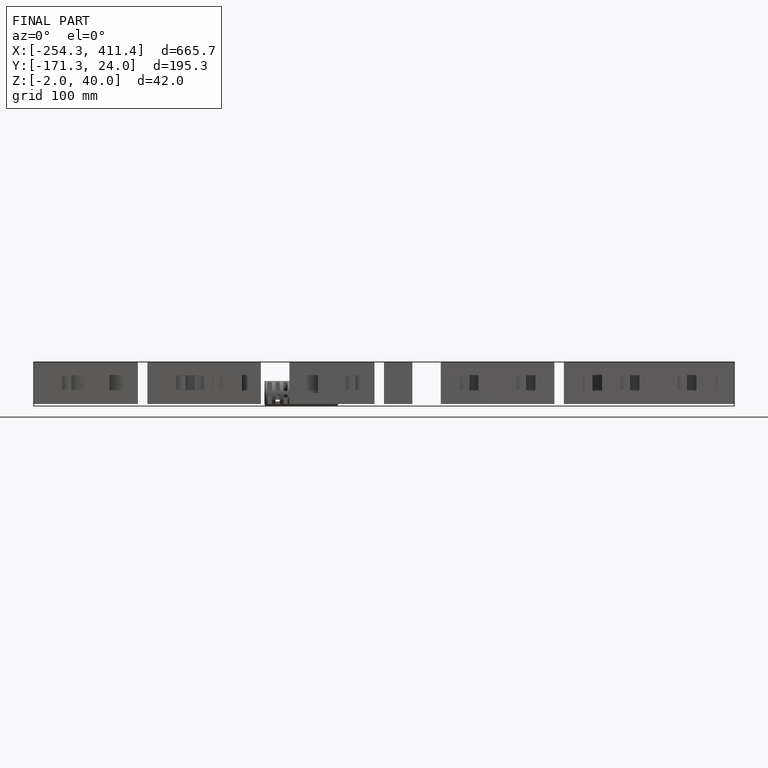
[diagram: finished part — front view with bounding-box wireframe]
